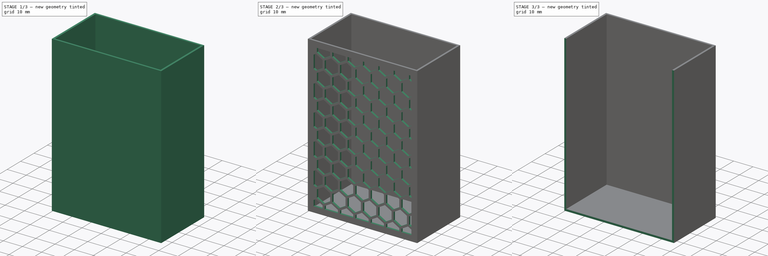
[diagram: build sequence overview — one tinted view per stage of 3, left to right]
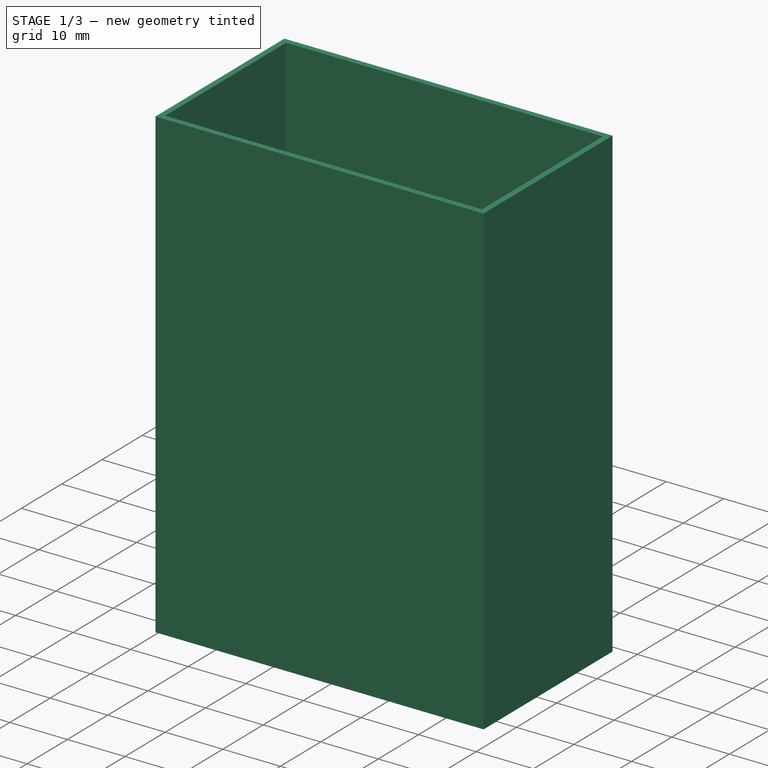
[diagram: stage 1 of 3 — iso view after this stage's code; geometry added in this stage tinted green]
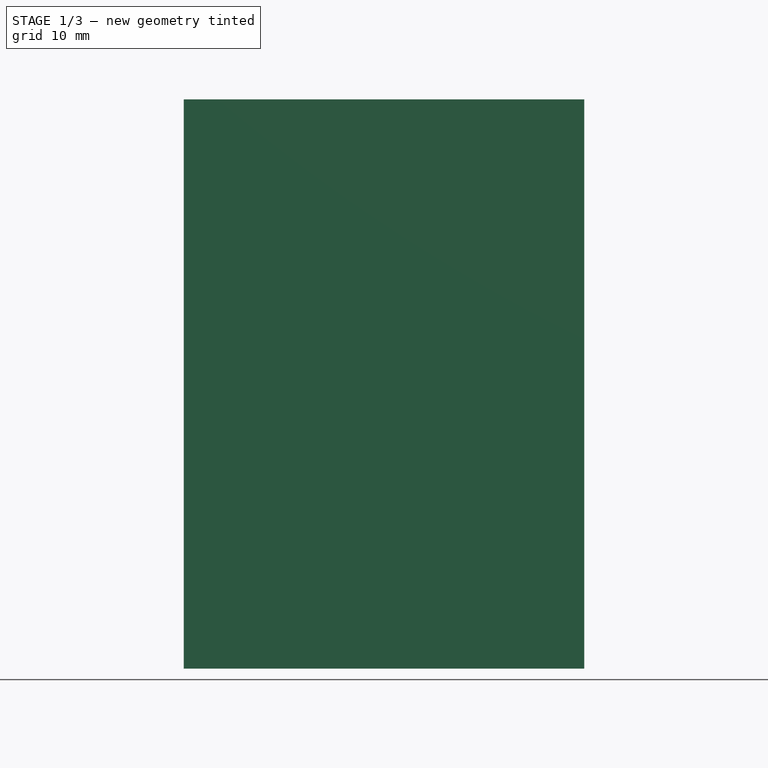
[diagram: stage 1 of 3 — front view after this stage's code; geometry added in this stage tinted green]
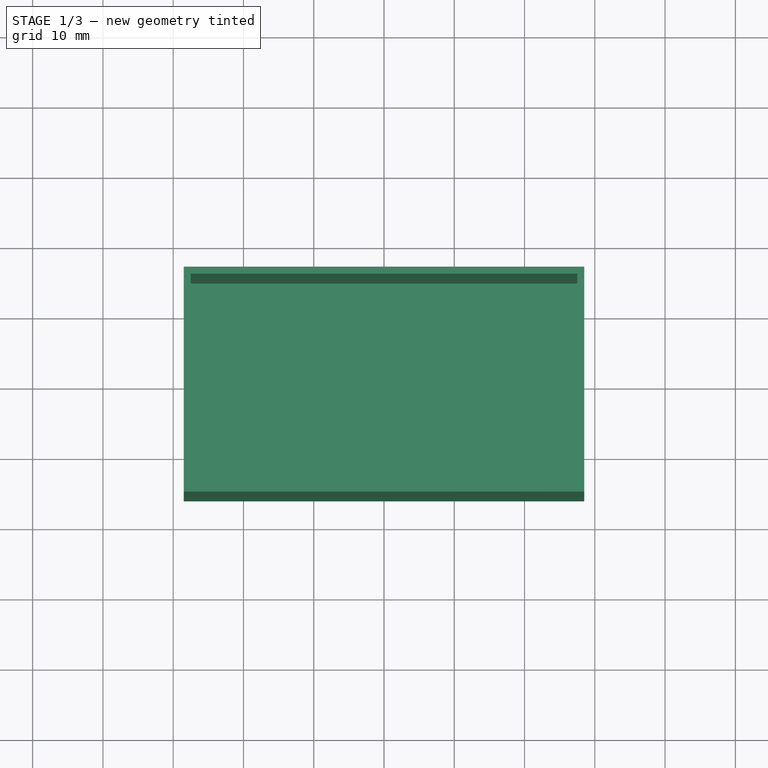
[diagram: stage 1 of 3 — top view after this stage's code; geometry added in this stage tinted green]
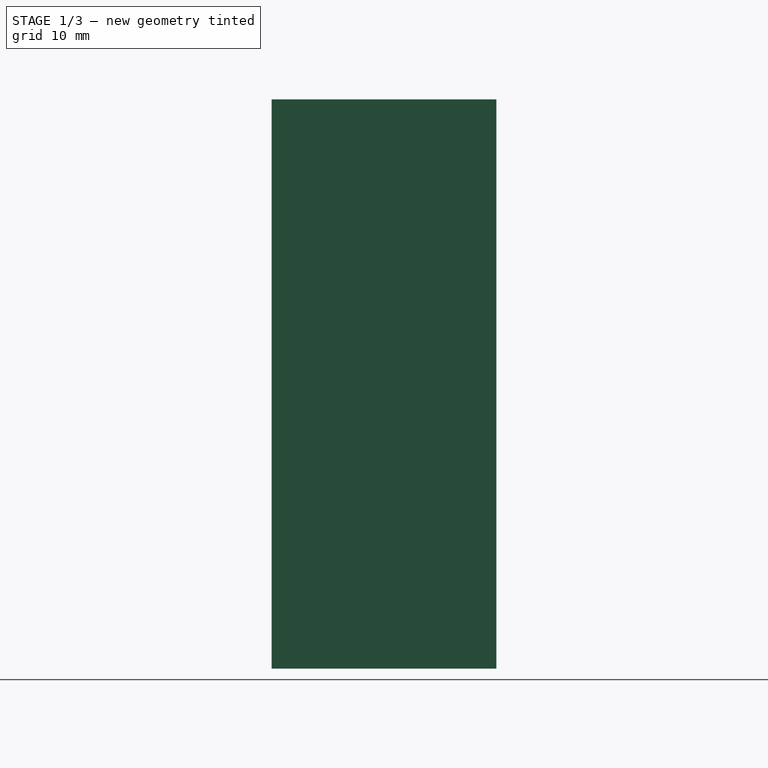
[diagram: stage 1 of 3 — right view after this stage's code; geometry added in this stage tinted green]
FCSTD DOCUMENT  (FreeCAD 1.0R39109 (Git))
Label: SoporteControlAC
License: All rights reserved
LicenseURL: http://en.wikipedia.org/wiki/All_rights_reserved
objects: Sketcher::SketchObject×6, PartDesign::Pocket×2, PartDesign::Pad×1, PartDesign::Thickness×1, Part::FeaturePython×1, PartDesign::Fillet×1, PartDesign::Body×1
note: 28 computed .brp shape members not serialized (recipe doc carries the construction recipe); baked Part::Feature solids carry a one-line shape summary decoded from their .brp

FEATURE [Sketcher::SketchObject] Sketch
  ArcFitTolerance = 1e-06
  AttachmentSupport = -> [XY_Plane]
  FullyConstrained = true
  MakeInternals = false
  MapMode = 5
  sketch-geometry (4):
    g0: LineSegment StartX=-28.5 StartY=16 StartZ=0 EndX=-28.5 EndY=-16 EndZ=0
    g1: LineSegment StartX=-28.5 StartY=-16 StartZ=0 EndX=28.5 EndY=-16 EndZ=0
    g2: LineSegment StartX=28.5 StartY=-16 StartZ=0 EndX=28.5 EndY=16 EndZ=0
    g3: LineSegment StartX=28.5 StartY=16 StartZ=0 EndX=-28.5 EndY=16 EndZ=0
  constraints (11):
    c: Coincident(g0,g1)
    c: Coincident(g1,g2)
    c: Coincident(g2,g3)
    c: Coincident(g3,g0)
    c: Vertical(g0)
    c: Vertical(g2)
    c: Horizontal(g1)
    c: Horizontal(g3)
    c: Distance(g0,g2) = 57
    c: Distance(g1,g3) = 32
    c: Symmetric(g0,g1,g-1)
FEATURE [PartDesign::Pad] Pad
  Direction = (0,0,1)
  Length = 81
  Length2 = 10
  Profile = -> Sketch
  ReferenceAxis = -> Sketch [N_Axis]
  Suppressed = false
  Type = 0
FEATURE [PartDesign::Thickness] Thickness
  Base = -> Pad [Face6]
  BaseFeature = -> Pad
  Intersection = false
  Join = 0
  Mode = 0
  Reversed = true
  SupportTransform = false
  Suppressed = false
  Value = 1
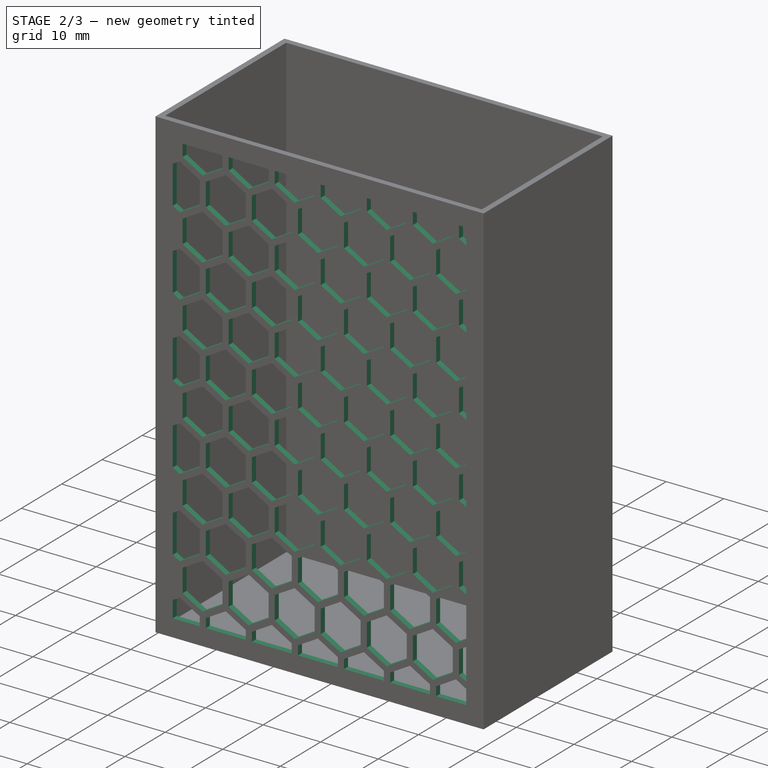
[diagram: stage 2 of 3 — iso view after this stage's code; geometry added in this stage tinted green]
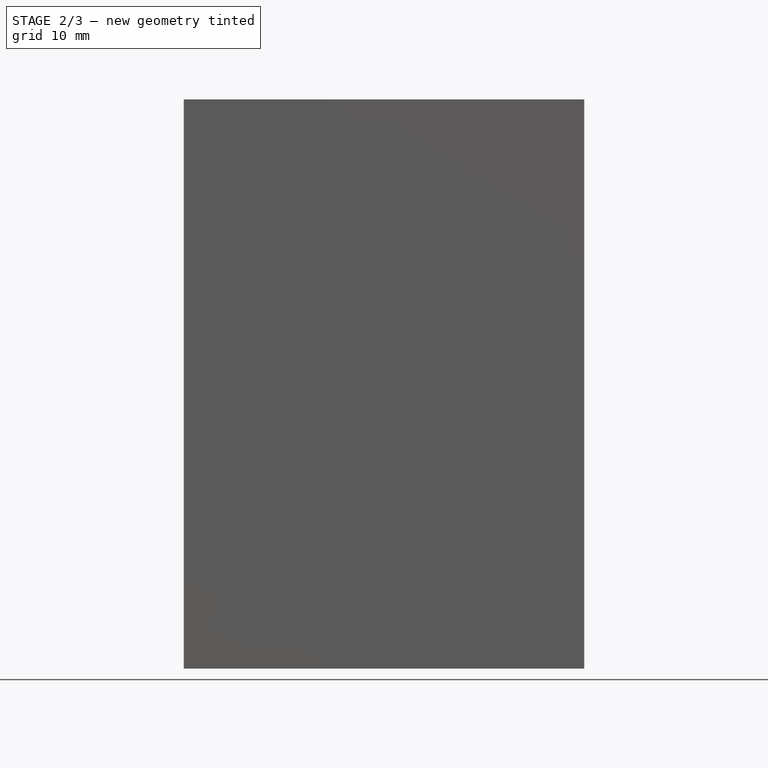
[diagram: stage 2 of 3 — front view after this stage's code; geometry added in this stage tinted green]
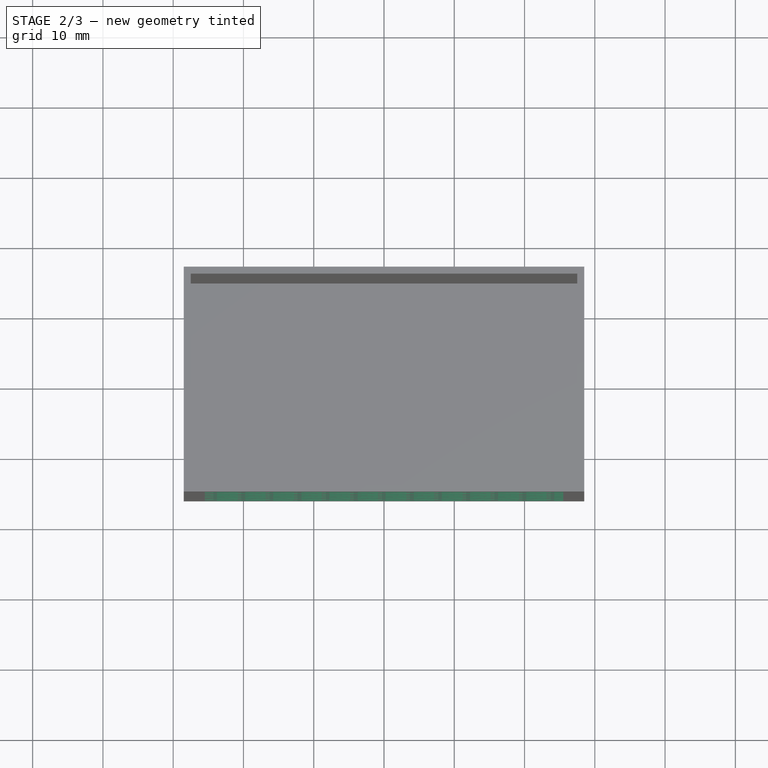
[diagram: stage 2 of 3 — top view after this stage's code; geometry added in this stage tinted green]
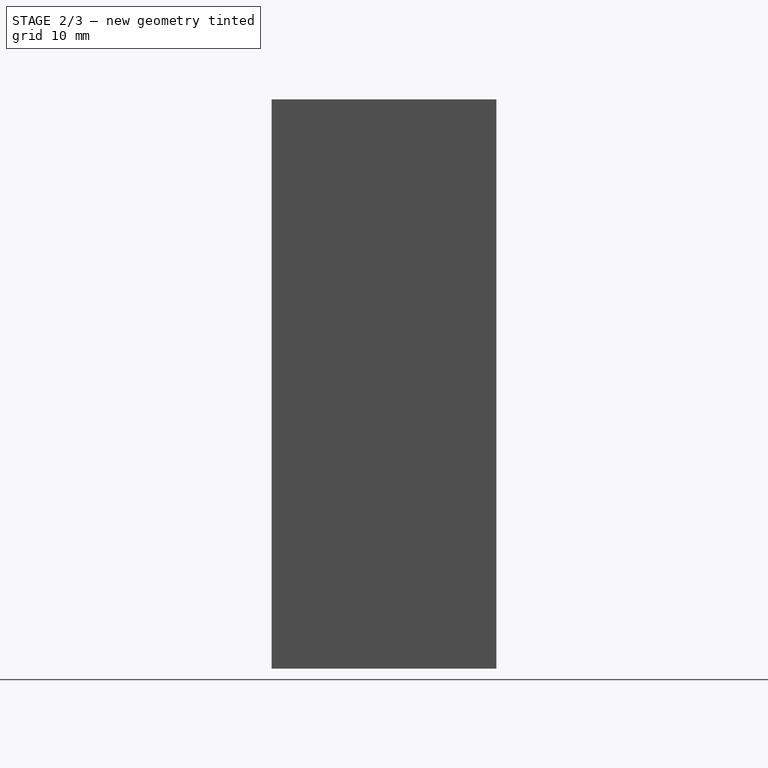
[diagram: stage 2 of 3 — right view after this stage's code; geometry added in this stage tinted green]
FEATURE [Sketcher::SketchObject] Sketch001
  ArcFitTolerance = 1e-06
  FullyConstrained = false
  MakeInternals = false
  MapMode = 5
  Placement = pos=(0,-16,0) rot=(1,0,0;1.5708rad)
  sketch-geometry (17):
    g0: LineSegment StartX=-11.8498 StartY=44.7084 StartZ=0 EndX=-11.8498 EndY=48.7084 EndZ=0
    g1: LineSegment StartX=-11.8498 StartY=48.7084 StartZ=0 EndX=-15.3139 EndY=50.7084 EndZ=0
    g2: LineSegment StartX=-15.3139 StartY=50.7084 StartZ=0 EndX=-18.778 EndY=48.7084 EndZ=0
    g3: LineSegment StartX=-18.778 StartY=48.7084 StartZ=0 EndX=-18.778 EndY=44.7084 EndZ=0
    g4: LineSegment StartX=-18.778 StartY=44.7084 StartZ=0 EndX=-15.3139 EndY=42.7084 EndZ=0
    g5: LineSegment StartX=-15.3139 StartY=42.7084 StartZ=0 EndX=-11.8498 EndY=44.7084 EndZ=0
    g6: Circle [constr] CenterX=-15.3139 CenterY=46.7084 CenterZ=0 NormalX=0 NormalY=0 NormalZ=1 AngleXU=0 Radius=4
    g7: LineSegment StartX=-15.8139 StartY=51.5745 StartZ=0 EndX=-15.8139 EndY=55.5745 EndZ=0
    g8: LineSegment StartX=-15.8139 StartY=55.5745 StartZ=0 EndX=-19.278 EndY=57.5745 EndZ=0
    g9: LineSegment StartX=-19.278 StartY=57.5745 StartZ=0 EndX=-22.7421 EndY=55.5745 EndZ=0
    g10: LineSegment StartX=-22.7421 StartY=55.5745 StartZ=0 EndX=-22.7421 EndY=51.5745 EndZ=0
    g11: LineSegment StartX=-22.7421 StartY=51.5745 StartZ=0 EndX=-19.278 EndY=49.5745 EndZ=0
    g12: LineSegment StartX=-19.278 StartY=49.5745 StartZ=0 EndX=-15.8139 EndY=51.5745 EndZ=0
    g13: Circle [constr] CenterX=-19.278 CenterY=53.5745 CenterZ=0 NormalX=0 NormalY=0 NormalZ=1 AngleXU=0 Radius=4
    g14: LineSegment [constr] StartX=-15.8139 StartY=51.5745 StartZ=0 EndX=-15.3139 EndY=50.7084 EndZ=0
    g15: LineSegment [constr] StartX=-15.3139 StartY=50.7084 StartZ=0 EndX=-16.3139 EndY=50.7084 EndZ=0
    g16: LineSegment [constr] StartX=-16.3139 StartY=50.7084 StartZ=0 EndX=-15.8139 EndY=51.5745 EndZ=0
  constraints (39):
    c: Coincident(g0,g1)
    c: Coincident(g1,g2)
    c: Coincident(g2,g3)
    c: Coincident(g3,g4)
    c: Coincident(g4,g5)
    c: Coincident(g5,g0)
    c: Equal(g0, g1-g5) x5
    c: PointOnObject(g0,g6)
    c: PointOnObject(g1,g6)
    c: PointOnObject(g2,g6)
    c: PointOnObject(g3,g6)
    c: PointOnObject(g4,g6)
    c: PointOnObject(g5,g6)
    c: Radius(g6) = 4
    c: Vertical(g0)
    c: Coincident(g7,g8)
    c: Coincident(g8,g9)
    c: Coincident(g9,g10)
    c: Coincident(g10,g11)
    c: Coincident(g11,g12)
    c: Coincident(g12,g7)
    c: Equal(g7, g8-g12) x5
    c: PointOnObject(g7,g13)
    c: PointOnObject(g8,g13)
    c: PointOnObject(g9,g13)
    c: PointOnObject(g10,g13)
    c: PointOnObject(g11,g13)
    c: PointOnObject(g12,g13)
    c: Radius(g13) = 4
    c: Vertical(g7)
    c: Coincident(g7,g14)
    c: Coincident(g14,g1)
    c: Coincident(g14,g15)
    c: Horizontal(g15)
    c: Coincident(g15,g16)
    c: Coincident(g16,g14)
    c: Equal(g14,g16)
    c: Equal(g16,g15)
    c: Distance(g14) = 1
FEATURE [Part::FeaturePython] Array  # Draft array (typed FeaturePython)
  AlwaysSyncPlacement = false
  Angle = 360
  ArrayType = 0
  Axis = (0,0,1)
  Base = -> Sketch001
  Center = (0,0,0)
  Count = 56
  ExpandArray = false
  Fuse = false
  IntervalAxis = (0,0,0)
  IntervalX = (8,0,0)
  IntervalY = (0,8,0)
  IntervalZ = (0,0,13.7)
  NumberCircles = 3
  NumberPolar = 5
  NumberX = 7
  NumberY = 1
  NumberZ = 8
  Placement = pos=(-5,0,-51) rot=(0,0,1;0rad)
  PlacementList = 56 placements: [(0,-16,0),(0,-16,13.7),(0,-16,27.4),(0,-16,41.1),(0,-16,54.8),(0,-16,68.5),(0,-16,82.2),(0,-16,95.9),(8,-16,0),(8,-16,13.7),(8,-16,27.4),(8,-16,41.1),(8,-16,54.8),(8,-16,68.5),(8,-16,82.2),(8,-16,95.9),(16,-16,0),(16,-16,13.7),(16,-16,27.4),(16,-16,41.1),(16,-16,54.8),(16,-16,68.5),(16,-16,82.2),(16,-16,95.9),(24,-16,0),(24,-16,13.7),(24,-16,27.4),(24,-16,41.1),(24,-16,54.8),(24,-16,68.5),+26 more]
  RadialDistance = 50
  ScaleList = (56) [(1,1,1),(1,1,1),(1,1,1),(1,1,1),(1,1,1),(1,1,1),(1,1,1),(1,1,1),(1,1,1),(1,1,1),(1,1,1),(1,1,1),(1,1,1),(1,1,1),(1,1,1),(1,1,1),(1,1,1),(1,1,1),+38 more]
  Symmetry = 1
  TangentialDistance = 25
FEATURE [Sketcher::SketchObject] Sketch003
  ArcFitTolerance = 1e-06
  FullyConstrained = true
  MakeInternals = false
  MapMode = 5
  Placement = pos=(0,-16,0) rot=(1,0,0;1.5708rad)
FEATURE [Sketcher::SketchObject] Sketch004
  ArcFitTolerance = 1e-06
  AttachmentSupport = -> [Thickness]
  ExternalGeometry = -> [Thickness]
  FullyConstrained = true
  MakeInternals = false
  MapMode = 5
  Placement = pos=(0,-16,0) rot=(1,0,0;1.5708rad)
  sketch-geometry (12):
    g0: LineSegment StartX=-28.5 StartY=81 StartZ=0 EndX=-28.5 EndY=0 EndZ=0
    g1: LineSegment StartX=-28.5 StartY=0 StartZ=0 EndX=28.5 EndY=0 EndZ=0
    g2: LineSegment StartX=28.5 StartY=0 StartZ=0 EndX=28.5 EndY=81 EndZ=0
    g3: LineSegment StartX=28.5 StartY=81 StartZ=0 EndX=-28.5 EndY=81 EndZ=0
    g4: LineSegment StartX=-25.5 StartY=78 StartZ=0 EndX=-25.5 EndY=3 EndZ=0
    g5: LineSegment StartX=-25.5 StartY=3 StartZ=0 EndX=25.5 EndY=3 EndZ=0
    g6: LineSegment StartX=25.5 StartY=3 StartZ=0 EndX=25.5 EndY=78 EndZ=0
    g7: LineSegment StartX=25.5 StartY=78 StartZ=0 EndX=-25.5 EndY=78 EndZ=0
    g8: LineSegment [constr] StartX=-28.5 StartY=81 StartZ=0 EndX=-25.5 EndY=78 EndZ=0
    g9: LineSegment [constr] StartX=-28.5 StartY=0 StartZ=0 EndX=-25.5 EndY=3 EndZ=0
    g10: LineSegment [constr] StartX=28.5 StartY=0 StartZ=0 EndX=25.5 EndY=3 EndZ=0
    g11: LineSegment [constr] StartX=28.5 StartY=81 StartZ=0 EndX=25.5 EndY=78 EndZ=0
  constraints (30):
    c: Coincident(g0,g1)
    c: Coincident(g1,g2)
    c: Coincident(g2,g3)
    c: Coincident(g3,g0)
    c: Vertical(g0)
    c: Vertical(g2)
    c: Horizontal(g1)
    c: Horizontal(g3)
    c: Coincident(g4,g5)
    c: Coincident(g5,g6)
    c: Coincident(g6,g7)
    c: Coincident(g7,g4)
    c: Vertical(g4)
    c: Vertical(g6)
    c: Horizontal(g5)
    c: Horizontal(g7)
    c: Coincident(g8,g0)
    c: Coincident(g8,g4)
    c: Coincident(g9,g1)
    c: Coincident(g9,g5)
    c: Coincident(g10,g2)
    c: Coincident(g10,g6)
    c: Coincident(g11,g3)
    c: Coincident(g11,g7)
    c: Perpendicular(g8,g9)
    c: Perpendicular(g9,g10)
    c: Perpendicular(g10,g11)
    c: Distance(g4,g0) = 3
    c: Coincident(g0,g-3)
    c: Coincident(g1,g-4)
FEATURE [Sketcher::SketchObject] Sketch002
  ArcFitTolerance = 1e-06
  ExternalGeometry = -> [Sketch004]
  FullyConstrained = false
  MakeInternals = false
  Placement = pos=(0,-16,0) rot=(1,0,0;1.5708rad)
  sketch-geometry (479):
    g0: LineSegment StartX=-20.8139 StartY=3 StartZ=0 EndX=-20.8139 EndY=4.57446 EndZ=0
    g1: LineSegment StartX=-20.8139 StartY=4.57446 StartZ=0 EndX=-24.278 EndY=6.57446 EndZ=0
    g2: LineSegment StartX=-24.278 StartY=6.57446 StartZ=0 EndX=-25.5 EndY=5.86894 EndZ=0
    g3: LineSegment StartX=-16.8498 StartY=7.40843 StartZ=0 EndX=-16.8498 EndY=11.4084 EndZ=0
    g4: LineSegment StartX=-16.8498 StartY=11.4084 StartZ=0 EndX=-20.3139 EndY=13.4084 EndZ=0
    g5: LineSegment StartX=-20.3139 StartY=13.4084 StartZ=0 EndX=-23.778 EndY=11.4084 EndZ=0
    g6: LineSegment StartX=-23.778 StartY=11.4084 StartZ=0 EndX=-23.778 EndY=7.40843 EndZ=0
    g7: LineSegment StartX=-23.778 StartY=7.40843 StartZ=0 EndX=-20.3139 EndY=5.40843 EndZ=0
    g8: LineSegment StartX=-20.3139 StartY=5.40843 StartZ=0 EndX=-16.8498 EndY=7.40843 EndZ=0
    g9: LineSegment StartX=-20.8139 StartY=14.2745 StartZ=0 EndX=-20.8139 EndY=18.2745 EndZ=0
    g10: LineSegment StartX=-20.8139 StartY=18.2745 StartZ=0 EndX=-24.278 EndY=20.2745 EndZ=0
    g11: LineSegment StartX=-24.278 StartY=20.2745 StartZ=0 EndX=-25.5 EndY=19.5689 EndZ=0
    g12: LineSegment StartX=-25.5 StartY=12.98 StartZ=0 EndX=-24.278 EndY=12.2745 EndZ=0
    g13: LineSegment StartX=-24.278 StartY=12.2745 StartZ=0 EndX=-20.8139 EndY=14.2745 EndZ=0
    g14: LineSegment StartX=-16.8498 StartY=21.1084 StartZ=0 EndX=-16.8498 EndY=25.1084 EndZ=0
    g15: LineSegment StartX=-16.8498 StartY=25.1084 StartZ=0 EndX=-20.3139 EndY=27.1084 EndZ=0
    g16: LineSegment StartX=-20.3139 StartY=27.1084 StartZ=0 EndX=-23.778 EndY=25.1084 EndZ=0
    g17: LineSegment StartX=-23.778 StartY=25.1084 StartZ=0 EndX=-23.778 EndY=21.1084 EndZ=0
    g18: LineSegment StartX=-23.778 StartY=21.1084 StartZ=0 EndX=-20.3139 EndY=19.1084 EndZ=0
    g19: LineSegment StartX=-20.3139 StartY=19.1084 StartZ=0 EndX=-16.8498 EndY=21.1084 EndZ=0
    g20: LineSegment StartX=-20.8139 StartY=27.9745 StartZ=0 EndX=-20.8139 EndY=31.9745 EndZ=0
    g21: LineSegment StartX=-20.8139 StartY=31.9745 StartZ=0 EndX=-24.278 EndY=33.9745 EndZ=0
    g22: LineSegment StartX=-24.278 StartY=33.9745 StartZ=0 EndX=-25.5 EndY=33.2689 EndZ=0
    g23: LineSegment StartX=-25.5 StartY=26.68 StartZ=0 EndX=-24.278 EndY=25.9745 EndZ=0
    g24: LineSegment StartX=-24.278 StartY=25.9745 StartZ=0 EndX=-20.8139 EndY=27.9745 EndZ=0
    g25: LineSegment StartX=-16.8498 StartY=34.8084 StartZ=0 EndX=-16.8498 EndY=38.8084 EndZ=0
    g26: LineSegment StartX=-16.8498 StartY=38.8084 StartZ=0 EndX=-20.3139 EndY=40.8084 EndZ=0
    g27: LineSegment StartX=-20.3139 StartY=40.8084 StartZ=0 EndX=-23.778 EndY=38.8084 EndZ=0
    g28: LineSegment StartX=-23.778 StartY=38.8084 StartZ=0 EndX=-23.778 EndY=34.8084 EndZ=0
    g29: LineSegment StartX=-23.778 StartY=34.8084 StartZ=0 EndX=-20.3139 EndY=32.8084 EndZ=0
    g30: LineSegment StartX=-20.3139 StartY=32.8084 StartZ=0 EndX=-16.8498 EndY=34.8084 EndZ=0
    g31: LineSegment StartX=-20.8139 StartY=41.6745 StartZ=0 EndX=-20.8139 EndY=45.6745 EndZ=0
    g32: LineSegment StartX=-20.8139 StartY=45.6745 StartZ=0 EndX=-24.278 EndY=47.6745 EndZ=0
    g33: LineSegment StartX=-24.278 StartY=47.6745 StartZ=0 EndX=-25.5 EndY=46.9689 EndZ=0
    g34: LineSegment StartX=-25.5 StartY=40.38 StartZ=0 EndX=-24.278 EndY=39.6745 EndZ=0
    g35: LineSegment StartX=-24.278 StartY=39.6745 StartZ=0 EndX=-20.8139 EndY=41.6745 EndZ=0
    g36: LineSegment StartX=-16.8498 StartY=48.5084 StartZ=0 EndX=-16.8498 EndY=52.5084 EndZ=0
    g37: LineSegment StartX=-16.8498 StartY=52.5084 StartZ=0 EndX=-20.3139 EndY=54.5084 EndZ=0
    g38: LineSegment StartX=-20.3139 StartY=54.5084 StartZ=0 EndX=-23.778 EndY=52.5084 EndZ=0
    g39: LineSegment StartX=-23.778 StartY=52.5084 StartZ=0 EndX=-23.778 EndY=48.5084 EndZ=0
    g40: LineSegment StartX=-23.778 StartY=48.5084 StartZ=0 EndX=-20.3139 EndY=46.5084 EndZ=0
    g41: LineSegment StartX=-20.3139 StartY=46.5084 StartZ=0 EndX=-16.8498 EndY=48.5084 EndZ=0
    g42: LineSegment StartX=-20.8139 StartY=55.3745 StartZ=0 EndX=-20.8139 EndY=59.3745 EndZ=0
    g43: LineSegment StartX=-20.8139 StartY=59.3745 StartZ=0 EndX=-24.278 EndY=61.3745 EndZ=0
    g44: LineSegment StartX=-24.278 StartY=61.3745 StartZ=0 EndX=-25.5 EndY=60.6689 EndZ=0
    g45: LineSegment StartX=-25.5 StartY=54.08 StartZ=0 EndX=-24.278 EndY=53.3745 EndZ=0
    g46: LineSegment StartX=-24.278 StartY=53.3745 StartZ=0 EndX=-20.8139 EndY=55.3745 EndZ=0
    g47: LineSegment StartX=-16.8498 StartY=62.2084 StartZ=0 EndX=-16.8498 EndY=66.2084 EndZ=0
    g48: LineSegment StartX=-16.8498 StartY=66.2084 StartZ=0 EndX=-20.3139 EndY=68.2084 EndZ=0
    g49: LineSegment StartX=-20.3139 StartY=68.2084 StartZ=0 EndX=-23.778 EndY=66.2084 EndZ=0
    g50: LineSegment StartX=-23.778 StartY=66.2084 StartZ=0 EndX=-23.778 EndY=62.2084 EndZ=0
    g51: LineSegment StartX=-23.778 StartY=62.2084 StartZ=0 EndX=-20.3139 EndY=60.2084 EndZ=0
    g52: LineSegment StartX=-20.3139 StartY=60.2084 StartZ=0 EndX=-16.8498 EndY=62.2084 EndZ=0
    g53: LineSegment StartX=-20.8139 StartY=69.0745 StartZ=0 EndX=-20.8139 EndY=73.0745 EndZ=0
    g54: LineSegment StartX=-20.8139 StartY=73.0745 StartZ=0 EndX=-24.278 EndY=75.0745 EndZ=0
    g55: LineSegment StartX=-24.278 StartY=75.0745 StartZ=0 EndX=-25.5 EndY=74.3689 EndZ=0
    g56: LineSegment StartX=-25.5 StartY=67.78 StartZ=0 EndX=-24.278 EndY=67.0745 EndZ=0
    g57: LineSegment StartX=-24.278 StartY=67.0745 StartZ=0 EndX=-20.8139 EndY=69.0745 EndZ=0
    g58: LineSegment StartX=-16.8498 StartY=75.9084 StartZ=0 EndX=-16.8498 EndY=78 EndZ=0
    g59: LineSegment StartX=-23.778 StartY=78 StartZ=0 EndX=-23.778 EndY=75.9084 EndZ=0
    g60: LineSegment StartX=-23.778 StartY=75.9084 StartZ=0 EndX=-20.3139 EndY=73.9084 EndZ=0
    g61: LineSegment StartX=-20.3139 StartY=73.9084 StartZ=0 EndX=-16.8498 EndY=75.9084 EndZ=0
    g62: LineSegment StartX=-12.8139 StartY=3 StartZ=0 EndX=-12.8139 EndY=4.57446 EndZ=0
    g63: LineSegment StartX=-12.8139 StartY=4.57446 StartZ=0 EndX=-16.278 EndY=6.57446 EndZ=0
    g64: LineSegment StartX=-16.278 StartY=6.57446 StartZ=0 EndX=-19.7421 EndY=4.57446 EndZ=0
    g65: LineSegment StartX=-19.7421 StartY=4.57446 StartZ=0 EndX=-19.7421 EndY=3 EndZ=0
    g66: LineSegment StartX=-8.84981 StartY=7.40843 StartZ=0 EndX=-8.84981 EndY=11.4084 EndZ=0
    g67: LineSegment StartX=-8.84981 StartY=11.4084 StartZ=0 EndX=-12.3139 EndY=13.4084 EndZ=0
    g68: LineSegment StartX=-12.3139 StartY=13.4084 StartZ=0 EndX=-15.778 EndY=11.4084 EndZ=0
    g69: LineSegment StartX=-15.778 StartY=11.4084 StartZ=0 EndX=-15.778 EndY=7.40843 EndZ=0
    g70: LineSegment StartX=-15.778 StartY=7.40843 StartZ=0 EndX=-12.3139 EndY=5.40843 EndZ=0
    g71: LineSegment StartX=-12.3139 StartY=5.40843 StartZ=0 EndX=-8.84981 EndY=7.40843 EndZ=0
    g72: LineSegment StartX=-12.8139 StartY=14.2745 StartZ=0 EndX=-12.8139 EndY=18.2745 EndZ=0
    g73: LineSegment StartX=-12.8139 StartY=18.2745 StartZ=0 EndX=-16.278 EndY=20.2745 EndZ=0
    g74: LineSegment StartX=-16.278 StartY=20.2745 StartZ=0 EndX=-19.7421 EndY=18.2745 EndZ=0
    g75: LineSegment StartX=-19.7421 StartY=18.2745 StartZ=0 EndX=-19.7421 EndY=14.2745 EndZ=0
    g76: LineSegment StartX=-19.7421 StartY=14.2745 StartZ=0 EndX=-16.278 EndY=12.2745 EndZ=0
    g77: LineSegment StartX=-16.278 StartY=12.2745 StartZ=0 EndX=-12.8139 EndY=14.2745 EndZ=0
    g78: LineSegment StartX=-8.84981 StartY=21.1084 StartZ=0 EndX=-8.84981 EndY=25.1084 EndZ=0
    g79: LineSegment StartX=-8.84981 StartY=25.1084 StartZ=0 EndX=-12.3139 EndY=27.1084 EndZ=0
    g80: LineSegment StartX=-12.3139 StartY=27.1084 StartZ=0 EndX=-15.778 EndY=25.1084 EndZ=0
    g81: LineSegment StartX=-15.778 StartY=25.1084 StartZ=0 EndX=-15.778 EndY=21.1084 EndZ=0
    g82: LineSegment StartX=-15.778 StartY=21.1084 StartZ=0 EndX=-12.3139 EndY=19.1084 EndZ=0
    g83: LineSegment StartX=-12.3139 StartY=19.1084 StartZ=0 EndX=-8.84981 EndY=21.1084 EndZ=0
    g84: LineSegment StartX=-12.8139 StartY=27.9745 StartZ=0 EndX=-12.8139 EndY=31.9745 EndZ=0
    g85: LineSegment StartX=-12.8139 StartY=31.9745 StartZ=0 EndX=-16.278 EndY=33.9745 EndZ=0
    g86: LineSegment StartX=-16.278 StartY=33.9745 StartZ=0 EndX=-19.7421 EndY=31.9745 EndZ=0
    g87: LineSegment StartX=-19.7421 StartY=31.9745 StartZ=0 EndX=-19.7421 EndY=27.9745 EndZ=0
    g88: LineSegment StartX=-19.7421 StartY=27.9745 StartZ=0 EndX=-16.278 EndY=25.9745 EndZ=0
    g89: LineSegment StartX=-16.278 StartY=25.9745 StartZ=0 EndX=-12.8139 EndY=27.9745 EndZ=0
    g90: LineSegment StartX=-8.84981 StartY=34.8084 StartZ=0 EndX=-8.84981 EndY=38.8084 EndZ=0
    g91: LineSegment StartX=-8.84981 StartY=38.8084 StartZ=0 EndX=-12.3139 EndY=40.8084 EndZ=0
    g92: LineSegment StartX=-12.3139 StartY=40.8084 StartZ=0 EndX=-15.778 EndY=38.8084 EndZ=0
    g93: LineSegment StartX=-15.778 StartY=38.8084 StartZ=0 EndX=-15.778 EndY=34.8084 EndZ=0
    g94: LineSegment StartX=-15.778 StartY=34.8084 StartZ=0 EndX=-12.3139 EndY=32.8084 EndZ=0
    g95: LineSegment StartX=-12.3139 StartY=32.8084 StartZ=0 EndX=-8.84981 EndY=34.8084 EndZ=0
    g96: LineSegment StartX=-12.8139 StartY=41.6745 StartZ=0 EndX=-12.8139 EndY=45.6745 EndZ=0
    g97: LineSegment StartX=-12.8139 StartY=45.6745 StartZ=0 EndX=-16.278 EndY=47.6745 EndZ=0
    g98: LineSegment StartX=-16.278 StartY=47.6745 StartZ=0 EndX=-19.7421 EndY=45.6745 EndZ=0
    g99: LineSegment StartX=-19.7421 StartY=45.6745 StartZ=0 EndX=-19.7421 EndY=41.6745 EndZ=0
    g100: LineSegment StartX=-19.7421 StartY=41.6745 StartZ=0 EndX=-16.278 EndY=39.6745 EndZ=0
    g101: LineSegment StartX=-16.278 StartY=39.6745 StartZ=0 EndX=-12.8139 EndY=41.6745 EndZ=0
    g102: LineSegment StartX=-8.84981 StartY=48.5084 StartZ=0 EndX=-8.84981 EndY=52.5084 EndZ=0
    g103: LineSegment StartX=-8.84981 StartY=52.5084 StartZ=0 EndX=-12.3139 EndY=54.5084 EndZ=0
    g104: LineSegment StartX=-12.3139 StartY=54.5084 StartZ=0 EndX=-15.778 EndY=52.5084 EndZ=0
    g105: LineSegment StartX=-15.778 StartY=52.5084 StartZ=0 EndX=-15.778 EndY=48.5084 EndZ=0
    g106: LineSegment StartX=-15.778 StartY=48.5084 StartZ=0 EndX=-12.3139 EndY=46.5084 EndZ=0
    g107: LineSegment StartX=-12.3139 StartY=46.5084 StartZ=0 EndX=-8.84981 EndY=48.5084 EndZ=0
    g108: LineSegment StartX=-12.8139 StartY=55.3745 StartZ=0 EndX=-12.8139 EndY=59.3745 EndZ=0
    g109: LineSegment StartX=-12.8139 StartY=59.3745 StartZ=0 EndX=-16.278 EndY=61.3745 EndZ=0
    g110: LineSegment StartX=-16.278 StartY=61.3745 StartZ=0 EndX=-19.7421 EndY=59.3745 EndZ=0
    g111: LineSegment StartX=-19.7421 StartY=59.3745 StartZ=0 EndX=-19.7421 EndY=55.3745 EndZ=0
    g112: LineSegment StartX=-19.7421 StartY=55.3745 StartZ=0 EndX=-16.278 EndY=53.3745 EndZ=0
    g113: LineSegment StartX=-16.278 StartY=53.3745 StartZ=0 EndX=-12.8139 EndY=55.3745 EndZ=0
    g114: LineSegment StartX=-8.84981 StartY=62.2084 StartZ=0 EndX=-8.84981 EndY=66.2084 EndZ=0
    g115: LineSegment StartX=-8.84981 StartY=66.2084 StartZ=0 EndX=-12.3139 EndY=68.2084 EndZ=0
    g116: LineSegment StartX=-12.3139 StartY=68.2084 StartZ=0 EndX=-15.778 EndY=66.2084 EndZ=0
    g117: LineSegment StartX=-15.778 StartY=66.2084 StartZ=0 EndX=-15.778 EndY=62.2084 EndZ=0
    g118: LineSegment StartX=-15.778 StartY=62.2084 StartZ=0 EndX=-12.3139 EndY=60.2084 EndZ=0
    g119: LineSegment StartX=-12.3139 StartY=60.2084 StartZ=0 EndX=-8.84981 EndY=62.2084 EndZ=0
    g120: LineSegment StartX=-12.8139 StartY=69.0745 StartZ=0 EndX=-12.8139 EndY=73.0745 EndZ=0
    g121: LineSegment StartX=-12.8139 StartY=73.0745 StartZ=0 EndX=-16.278 EndY=75.0745 EndZ=0
    g122: LineSegment StartX=-16.278 StartY=75.0745 StartZ=0 EndX=-19.7421 EndY=73.0745 EndZ=0
    g123: LineSegment StartX=-19.7421 StartY=73.0745 StartZ=0 EndX=-19.7421 EndY=69.0745 EndZ=0
    g124: LineSegment StartX=-19.7421 StartY=69.0745 StartZ=0 EndX=-16.278 EndY=67.0745 EndZ=0
    g125: LineSegment StartX=-16.278 StartY=67.0745 StartZ=0 EndX=-12.8139 EndY=69.0745 EndZ=0
    g126: LineSegment StartX=-8.84981 StartY=75.9084 StartZ=0 EndX=-8.84981 EndY=78 EndZ=0
    g127: LineSegment StartX=-15.778 StartY=78 StartZ=0 EndX=-15.778 EndY=75.9084 EndZ=0
    g128: LineSegment StartX=-15.778 StartY=75.9084 StartZ=0 EndX=-12.3139 EndY=73.9084 EndZ=0
    g129: LineSegment StartX=-12.3139 StartY=73.9084 StartZ=0 EndX=-8.84981 EndY=75.9084 EndZ=0
    g130: LineSegment StartX=-4.81391 StartY=3 StartZ=0 EndX=-4.81391 EndY=4.57446 EndZ=0
    g131: LineSegment StartX=-4.81391 StartY=4.57446 StartZ=0 EndX=-8.27801 EndY=6.57446 EndZ=0
    g132: LineSegment StartX=-8.27801 StartY=6.57446 StartZ=0 EndX=-11.7421 EndY=4.57446 EndZ=0
    g133: LineSegment StartX=-11.7421 StartY=4.57446 StartZ=0 EndX=-11.7421 EndY=3 EndZ=0
    g134: LineSegment StartX=-0.849808 StartY=7.40843 StartZ=0 EndX=-0.849808 EndY=11.4084 EndZ=0
    g135: LineSegment StartX=-0.849808 StartY=11.4084 StartZ=0 EndX=-4.31391 EndY=13.4084 EndZ=0
    g136: LineSegment StartX=-4.31391 StartY=13.4084 StartZ=0 EndX=-7.77801 EndY=11.4084 EndZ=0
    g137: LineSegment StartX=-7.77801 StartY=11.4084 StartZ=0 EndX=-7.77801 EndY=7.40843 EndZ=0
    g138: LineSegment StartX=-7.77801 StartY=7.40843 StartZ=0 EndX=-4.31391 EndY=5.40843 EndZ=0
    g139: LineSegment StartX=-4.31391 StartY=5.40843 StartZ=0 EndX=-0.849808 EndY=7.40843 EndZ=0
    g140: LineSegment StartX=-4.81391 StartY=14.2745 StartZ=0 EndX=-4.81391 EndY=18.2745 EndZ=0
    g141: LineSegment StartX=-4.81391 StartY=18.2745 StartZ=0 EndX=-8.27801 EndY=20.2745 EndZ=0
    g142: LineSegment StartX=-8.27801 StartY=20.2745 StartZ=0 EndX=-11.7421 EndY=18.2745 EndZ=0
    g143: LineSegment StartX=-11.7421 StartY=18.2745 StartZ=0 EndX=-11.7421 EndY=14.2745 EndZ=0
    g144: LineSegment StartX=-11.7421 StartY=14.2745 StartZ=0 EndX=-8.27801 EndY=12.2745 EndZ=0
    g145: LineSegment StartX=-8.27801 StartY=12.2745 StartZ=0 EndX=-4.81391 EndY=14.2745 EndZ=0
    g146: LineSegment StartX=-0.849808 StartY=21.1084 StartZ=0 EndX=-0.849808 EndY=25.1084 EndZ=0
    g147: LineSegment StartX=-0.849808 StartY=25.1084 StartZ=0 EndX=-4.31391 EndY=27.1084 EndZ=0
    g148: LineSegment StartX=-4.31391 StartY=27.1084 StartZ=0 EndX=-7.77801 EndY=25.1084 EndZ=0
    g149: LineSegment StartX=-7.77801 StartY=25.1084 StartZ=0 EndX=-7.77801 EndY=21.1084 EndZ=0
    g150: LineSegment StartX=-7.77801 StartY=21.1084 StartZ=0 EndX=-4.31391 EndY=19.1084 EndZ=0
    g151: LineSegment StartX=-4.31391 StartY=19.1084 StartZ=0 EndX=-0.849808 EndY=21.1084 EndZ=0
    g152: LineSegment StartX=-4.81391 StartY=27.9745 StartZ=0 EndX=-4.81391 EndY=31.9745 EndZ=0
    g153: LineSegment StartX=-4.81391 StartY=31.9745 StartZ=0 EndX=-8.27801 EndY=33.9745 EndZ=0
    g154: LineSegment StartX=-8.27801 StartY=33.9745 StartZ=0 EndX=-11.7421 EndY=31.9745 EndZ=0
    g155: LineSegment StartX=-11.7421 StartY=31.9745 StartZ=0 EndX=-11.7421 EndY=27.9745 EndZ=0
    g156: LineSegment StartX=-11.7421 StartY=27.9745 StartZ=0 EndX=-8.27801 EndY=25.9745 EndZ=0
    g157: LineSegment StartX=-8.27801 StartY=25.9745 StartZ=0 EndX=-4.81391 EndY=27.9745 EndZ=0
    g158: LineSegment StartX=-0.849808 StartY=34.8084 StartZ=0 EndX=-0.849808 EndY=38.8084 EndZ=0
    g159: LineSegment StartX=-0.849808 StartY=38.8084 StartZ=0 EndX=-4.31391 EndY=40.8084 EndZ=0
    g160: LineSegment StartX=-4.31391 StartY=40.8084 StartZ=0 EndX=-7.77801 EndY=38.8084 EndZ=0
    g161: LineSegment StartX=-7.77801 StartY=38.8084 StartZ=0 EndX=-7.77801 EndY=34.8084 EndZ=0
    g162: LineSegment StartX=-7.77801 StartY=34.8084 StartZ=0 EndX=-4.31391 EndY=32.8084 EndZ=0
    g163: LineSegment StartX=-4.31391 StartY=32.8084 StartZ=0 EndX=-0.849808 EndY=34.8084 EndZ=0
    g164: LineSegment StartX=-4.81391 StartY=41.6745 StartZ=0 EndX=-4.81391 EndY=45.6745 EndZ=0
    g165: LineSegment StartX=-4.81391 StartY=45.6745 StartZ=0 EndX=-8.27801 EndY=47.6745 EndZ=0
    g166: LineSegment StartX=-8.27801 StartY=47.6745 StartZ=0 EndX=-11.7421 EndY=45.6745 EndZ=0
    g167: LineSegment StartX=-11.7421 StartY=45.6745 StartZ=0 EndX=-11.7421 EndY=41.6745 EndZ=0
    g168: LineSegment StartX=-11.7421 StartY=41.6745 StartZ=0 EndX=-8.27801 EndY=39.6745 EndZ=0
    g169: LineSegment StartX=-8.27801 StartY=39.6745 StartZ=0 EndX=-4.81391 EndY=41.6745 EndZ=0
    g170: LineSegment StartX=-0.849808 StartY=48.5084 StartZ=0 EndX=-0.849808 EndY=52.5084 EndZ=0
    g171: LineSegment StartX=-0.849808 StartY=52.5084 StartZ=0 EndX=-4.31391 EndY=54.5084 EndZ=0
    g172: LineSegment StartX=-4.31391 StartY=54.5084 StartZ=0 EndX=-7.77801 EndY=52.5084 EndZ=0
    g173: LineSegment StartX=-7.77801 StartY=52.5084 StartZ=0 EndX=-7.77801 EndY=48.5084 EndZ=0
    g174: LineSegment StartX=-7.77801 StartY=48.5084 StartZ=0 EndX=-4.31391 EndY=46.5084 EndZ=0
    g175: LineSegment StartX=-4.31391 StartY=46.5084 StartZ=0 EndX=-0.849808 EndY=48.5084 EndZ=0
    g176: LineSegment StartX=-4.81391 StartY=55.3745 StartZ=0 EndX=-4.81391 EndY=59.3745 EndZ=0
    g177: LineSegment StartX=-4.81391 StartY=59.3745 StartZ=0 EndX=-8.27801 EndY=61.3745 EndZ=0
    g178: LineSegment StartX=-8.27801 StartY=61.3745 StartZ=0 EndX=-11.7421 EndY=59.3745 EndZ=0
    g179: LineSegment StartX=-11.7421 StartY=59.3745 StartZ=0 EndX=-11.7421 EndY=55.3745 EndZ=0
    g180: LineSegment StartX=-11.7421 StartY=55.3745 StartZ=0 EndX=-8.27801 EndY=53.3745 EndZ=0
    g181: LineSegment StartX=-8.27801 StartY=53.3745 StartZ=0 EndX=-4.81391 EndY=55.3745 EndZ=0
    g182: LineSegment StartX=-0.849808 StartY=62.2084 StartZ=0 EndX=-0.849808 EndY=66.2084 EndZ=0
    g183: LineSegment StartX=-0.849808 StartY=66.2084 StartZ=0 EndX=-4.31391 EndY=68.2084 EndZ=0
    g184: LineSegment StartX=-4.31391 StartY=68.2084 StartZ=0 EndX=-7.77801 EndY=66.2084 EndZ=0
    g185: LineSegment StartX=-7.77801 StartY=66.2084 StartZ=0 EndX=-7.77801 EndY=62.2084 EndZ=0
    g186: LineSegment StartX=-7.77801 StartY=62.2084 StartZ=0 EndX=-4.31391 EndY=60.2084 EndZ=0
    g187: LineSegment StartX=-4.31391 StartY=60.2084 StartZ=0 EndX=-0.849808 EndY=62.2084 EndZ=0
    g188: LineSegment StartX=-4.81391 StartY=69.0745 StartZ=0 EndX=-4.81391 EndY=73.0745 EndZ=0
    g189: LineSegment StartX=-4.81391 StartY=73.0745 StartZ=0 EndX=-8.27801 EndY=75.0745 EndZ=0
    g190: LineSegment StartX=-8.27801 StartY=75.0745 StartZ=0 EndX=-11.7421 EndY=73.0745 EndZ=0
    g191: LineSegment StartX=-11.7421 StartY=73.0745 StartZ=0 EndX=-11.7421 EndY=69.0745 EndZ=0
    g192: LineSegment StartX=-11.7421 StartY=69.0745 StartZ=0 EndX=-8.27801 EndY=67.0745 EndZ=0
    g193: LineSegment StartX=-8.27801 StartY=67.0745 StartZ=0 EndX=-4.81391 EndY=69.0745 EndZ=0
    g194: LineSegment StartX=-0.849808 StartY=75.9084 StartZ=0 EndX=-0.849808 EndY=78 EndZ=0
    g195: LineSegment StartX=-7.77801 StartY=78 StartZ=0 EndX=-7.77801 EndY=75.9084 EndZ=0
    g196: LineSegment StartX=-7.77801 StartY=75.9084 StartZ=0 EndX=-4.31391 EndY=73.9084 EndZ=0
    g197: LineSegment StartX=-4.31391 StartY=73.9084 StartZ=0 EndX=-0.849808 EndY=75.9084 EndZ=0
    g198: LineSegment StartX=3.18609 StartY=3 StartZ=0 EndX=3.18609 EndY=4.57446 EndZ=0
    g199: LineSegment StartX=3.18609 StartY=4.57446 StartZ=0 EndX=-0.278011 EndY=6.57446 EndZ=0
    g200: LineSegment StartX=-0.278011 StartY=6.57446 StartZ=0 EndX=-3.74211 EndY=4.57446 EndZ=0
    g201: LineSegment StartX=-3.74211 StartY=4.57446 StartZ=0 EndX=-3.74211 EndY=3 EndZ=0
    g202: LineSegment StartX=7.15019 StartY=7.40843 StartZ=0 EndX=7.15019 EndY=11.4084 EndZ=0
    g203: LineSegment StartX=7.15019 StartY=11.4084 StartZ=0 EndX=3.68609 EndY=13.4084 EndZ=0
    g204: LineSegment StartX=3.68609 StartY=13.4084 StartZ=0 EndX=0.221989 EndY=11.4084 EndZ=0
    g205: LineSegment StartX=0.221989 StartY=11.4084 StartZ=0 EndX=0.221989 EndY=7.40843 EndZ=0
    g206: LineSegment StartX=0.221989 StartY=7.40843 StartZ=0 EndX=3.68609 EndY=5.40843 EndZ=0
    g207: LineSegment StartX=3.68609 StartY=5.40843 StartZ=0 EndX=7.15019 EndY=7.40843 EndZ=0
    g208: LineSegment StartX=3.18609 StartY=14.2745 StartZ=0 EndX=3.18609 EndY=18.2745 EndZ=0
    g209: LineSegment StartX=3.18609 StartY=18.2745 StartZ=0 EndX=-0.278011 EndY=20.2745 EndZ=0
    g210: LineSegment StartX=-0.278011 StartY=20.2745 StartZ=0 EndX=-3.74211 EndY=18.2745 EndZ=0
    g211: LineSegment StartX=-3.74211 StartY=18.2745 StartZ=0 EndX=-3.74211 EndY=14.2745 EndZ=0
    g212: LineSegment StartX=-3.74211 StartY=14.2745 StartZ=0 EndX=-0.278011 EndY=12.2745 EndZ=0
    g213: LineSegment StartX=-0.278011 StartY=12.2745 StartZ=0 EndX=3.18609 EndY=14.2745 EndZ=0
    g214: LineSegment StartX=7.15019 StartY=21.1084 StartZ=0 EndX=7.15019 EndY=25.1084 EndZ=0
    g215: LineSegment StartX=7.15019 StartY=25.1084 StartZ=0 EndX=3.68609 EndY=27.1084 EndZ=0
    g216: LineSegment StartX=3.68609 StartY=27.1084 StartZ=0 EndX=0.221989 EndY=25.1084 EndZ=0
    g217: LineSegment StartX=0.221989 StartY=25.1084 StartZ=0 EndX=0.221989 EndY=21.1084 EndZ=0
    g218: LineSegment StartX=0.221989 StartY=21.1084 StartZ=0 EndX=3.68609 EndY=19.1084 EndZ=0
    g219: LineSegment StartX=3.68609 StartY=19.1084 StartZ=0 EndX=7.15019 EndY=21.1084 EndZ=0
    g220: LineSegment StartX=3.18609 StartY=27.9745 StartZ=0 EndX=3.18609 EndY=31.9745 EndZ=0
    g221: LineSegment StartX=3.18609 StartY=31.9745 StartZ=0 EndX=-0.278011 EndY=33.9745 EndZ=0
    g222: LineSegment StartX=-0.278011 StartY=33.9745 StartZ=0 EndX=-3.74211 EndY=31.9745 EndZ=0
    g223: LineSegment StartX=-3.74211 StartY=31.9745 StartZ=0 EndX=-3.74211 EndY=27.9745 EndZ=0
    g224: LineSegment StartX=-3.74211 StartY=27.9745 StartZ=0 EndX=-0.278011 EndY=25.9745 EndZ=0
    g225: LineSegment StartX=-0.278011 StartY=25.9745 StartZ=0 EndX=3.18609 EndY=27.9745 EndZ=0
    g226: LineSegment StartX=7.15019 StartY=34.8084 StartZ=0 EndX=7.15019 EndY=38.8084 EndZ=0
    g227: LineSegment StartX=7.15019 StartY=38.8084 StartZ=0 EndX=3.68609 EndY=40.8084 EndZ=0
    g228: LineSegment StartX=3.68609 StartY=40.8084 StartZ=0 EndX=0.221989 EndY=38.8084 EndZ=0
    g229: LineSegment StartX=0.221989 StartY=38.8084 StartZ=0 EndX=0.221989 EndY=34.8084 EndZ=0
    g230: LineSegment StartX=0.221989 StartY=34.8084 StartZ=0 EndX=3.68609 EndY=32.8084 EndZ=0
    g231: LineSegment StartX=3.68609 StartY=32.8084 StartZ=0 EndX=7.15019 EndY=34.8084 EndZ=0
    g232: LineSegment StartX=3.18609 StartY=41.6745 StartZ=0 EndX=3.18609 EndY=45.6745 EndZ=0
    g233: LineSegment StartX=3.18609 StartY=45.6745 StartZ=0 EndX=-0.278011 EndY=47.6745 EndZ=0
    g234: LineSegment StartX=-0.278011 StartY=47.6745 StartZ=0 EndX=-3.74211 EndY=45.6745 EndZ=0
    g235: LineSegment StartX=-3.74211 StartY=45.6745 StartZ=0 EndX=-3.74211 EndY=41.6745 EndZ=0
    g236: LineSegment StartX=-3.74211 StartY=41.6745 StartZ=0 EndX=-0.278011 EndY=39.6745 EndZ=0
    g237: LineSegment StartX=-0.278011 StartY=39.6745 StartZ=0 EndX=3.18609 EndY=41.6745 EndZ=0
    g238: LineSegment StartX=7.15019 StartY=48.5084 StartZ=0 EndX=7.15019 EndY=52.5084 EndZ=0
    g239: LineSegment StartX=7.15019 StartY=52.5084 StartZ=0 EndX=3.68609 EndY=54.5084 EndZ=0
    g240: LineSegment StartX=3.68609 StartY=54.5084 StartZ=0 EndX=0.221989 EndY=52.5084 EndZ=0
    g241: LineSegment StartX=0.221989 StartY=52.5084 StartZ=0 EndX=0.221989 EndY=48.5084 EndZ=0
    g242: LineSegment StartX=0.221989 StartY=48.5084 StartZ=0 EndX=3.68609 EndY=46.5084 EndZ=0
    g243: LineSegment StartX=3.68609 StartY=46.5084 StartZ=0 EndX=7.15019 EndY=48.5084 EndZ=0
    g244: LineSegment StartX=3.18609 StartY=55.3745 StartZ=0 EndX=3.18609 EndY=59.3745 EndZ=0
    g245: LineSegment StartX=3.18609 StartY=59.3745 StartZ=0 EndX=-0.278011 EndY=61.3745 EndZ=0
    g246: LineSegment StartX=-0.278011 StartY=61.3745 StartZ=0 EndX=-3.74211 EndY=59.3745 EndZ=0
    g247: LineSegment StartX=-3.74211 StartY=59.3745 StartZ=0 EndX=-3.74211 EndY=55.3745 EndZ=0
    g248: LineSegment StartX=-3.74211 StartY=55.3745 StartZ=0 EndX=-0.278011 EndY=53.3745 EndZ=0
    g249: LineSegment StartX=-0.278011 StartY=53.3745 StartZ=0 EndX=3.18609 EndY=55.3745 EndZ=0
    g250: LineSegment StartX=7.15019 StartY=62.2084 StartZ=0 EndX=7.15019 EndY=66.2084 EndZ=0
    g251: LineSegment StartX=7.15019 StartY=66.2084 StartZ=0 EndX=3.68609 EndY=68.2084 EndZ=0
    g252: LineSegment StartX=3.68609 StartY=68.2084 StartZ=0 EndX=0.221989 EndY=66.2084 EndZ=0
    g253: LineSegment StartX=0.221989 StartY=66.2084 StartZ=0 EndX=0.221989 EndY=62.2084 EndZ=0
    g254: LineSegment StartX=0.221989 StartY=62.2084 StartZ=0 EndX=3.68609 EndY=60.2084 EndZ=0
    g255: LineSegment StartX=3.68609 StartY=60.2084 StartZ=0 EndX=7.15019 EndY=62.2084 EndZ=0
    g256: LineSegment StartX=3.18609 StartY=69.0745 StartZ=0 EndX=3.18609 EndY=73.0745 EndZ=0
    g257: LineSegment StartX=3.18609 StartY=73.0745 StartZ=0 EndX=-0.278011 EndY=75.0745 EndZ=0
    g258: LineSegment StartX=-0.278011 StartY=75.0745 StartZ=0 EndX=-3.74211 EndY=73.0745 EndZ=0
    g259: LineSegment StartX=-3.74211 StartY=73.0745 StartZ=0 EndX=-3.74211 EndY=69.0745 EndZ=0
    g260: LineSegment StartX=-3.74211 StartY=69.0745 StartZ=0 EndX=-0.278011 EndY=67.0745 EndZ=0
    g261: LineSegment StartX=-0.278011 StartY=67.0745 StartZ=0 EndX=3.18609 EndY=69.0745 EndZ=0
    g262: LineSegment StartX=7.15019 StartY=75.9084 StartZ=0 EndX=7.15019 EndY=78 EndZ=0
    g263: LineSegment StartX=0.221989 StartY=78 StartZ=0 EndX=0.221989 EndY=75.9084 EndZ=0
    g264: LineSegment StartX=0.221989 StartY=75.9084 StartZ=0 EndX=3.68609 EndY=73.9084 EndZ=0
    g265: LineSegment StartX=3.68609 StartY=73.9084 StartZ=0 EndX=7.15019 EndY=75.9084 EndZ=0
    g266: LineSegment StartX=11.1861 StartY=3 StartZ=0 EndX=11.1861 EndY=4.57446 EndZ=0
    g267: LineSegment StartX=11.1861 StartY=4.57446 StartZ=0 EndX=7.72199 EndY=6.57446 EndZ=0
    g268: LineSegment StartX=7.72199 StartY=6.57446 StartZ=0 EndX=4.25789 EndY=4.57446 EndZ=0
    g269: LineSegment StartX=4.25789 StartY=4.57446 StartZ=0 EndX=4.25789 EndY=3 EndZ=0
    g270: LineSegment StartX=15.1502 StartY=7.40843 StartZ=0 EndX=15.1502 EndY=11.4084 EndZ=0
    g271: LineSegment StartX=15.1502 StartY=11.4084 StartZ=0 EndX=11.6861 EndY=13.4084 EndZ=0
    g272: LineSegment StartX=11.6861 StartY=13.4084 StartZ=0 EndX=8.22199 EndY=11.4084 EndZ=0
    g273: LineSegment StartX=8.22199 StartY=11.4084 StartZ=0 EndX=8.22199 EndY=7.40843 EndZ=0
    g274: LineSegment StartX=8.22199 StartY=7.40843 StartZ=0 EndX=11.6861 EndY=5.40843 EndZ=0
    g275: LineSegment StartX=11.6861 StartY=5.40843 StartZ=0 EndX=15.1502 EndY=7.40843 EndZ=0
    g276: LineSegment StartX=11.1861 StartY=14.2745 StartZ=0 EndX=11.1861 EndY=18.2745 EndZ=0
    g277: LineSegment StartX=11.1861 StartY=18.2745 StartZ=0 EndX=7.72199 EndY=20.2745 EndZ=0
    g278: LineSegment StartX=7.72199 StartY=20.2745 StartZ=0 EndX=4.25789 EndY=18.2745 EndZ=0
    g279: LineSegment StartX=4.25789 StartY=18.2745 StartZ=0 EndX=4.25789 EndY=14.2745 EndZ=0
    g280: LineSegment StartX=4.25789 StartY=14.2745 StartZ=0 EndX=7.72199 EndY=12.2745 EndZ=0
    g281: LineSegment StartX=7.72199 StartY=12.2745 StartZ=0 EndX=11.1861 EndY=14.2745 EndZ=0
    g282: LineSegment StartX=15.1502 StartY=21.1084 StartZ=0 EndX=15.1502 EndY=25.1084 EndZ=0
    g283: LineSegment StartX=15.1502 StartY=25.1084 StartZ=0 EndX=11.6861 EndY=27.1084 EndZ=0
    g284: LineSegment StartX=11.6861 StartY=27.1084 StartZ=0 EndX=8.22199 EndY=25.1084 EndZ=0
    g285: LineSegment StartX=8.22199 StartY=25.1084 StartZ=0 EndX=8.22199 EndY=21.1084 EndZ=0
    g286: LineSegment StartX=8.22199 StartY=21.1084 StartZ=0 EndX=11.6861 EndY=19.1084 EndZ=0
    g287: LineSegment StartX=11.6861 StartY=19.1084 StartZ=0 EndX=15.1502 EndY=21.1084 EndZ=0
    g288: LineSegment StartX=11.1861 StartY=27.9745 StartZ=0 EndX=11.1861 EndY=31.9745 EndZ=0
    g289: LineSegment StartX=11.1861 StartY=31.9745 StartZ=0 EndX=7.72199 EndY=33.9745 EndZ=0
    g290: LineSegment StartX=7.72199 StartY=33.9745 StartZ=0 EndX=4.25789 EndY=31.9745 EndZ=0
    g291: LineSegment StartX=4.25789 StartY=31.9745 StartZ=0 EndX=4.25789 EndY=27.9745 EndZ=0
    g292: LineSegment StartX=4.25789 StartY=27.9745 StartZ=0 EndX=7.72199 EndY=25.9745 EndZ=0
    g293: LineSegment StartX=7.72199 StartY=25.9745 StartZ=0 EndX=11.1861 EndY=27.9745 EndZ=0
    g294: LineSegment StartX=15.1502 StartY=34.8084 StartZ=0 EndX=15.1502 EndY=38.8084 EndZ=0
    g295: LineSegment StartX=15.1502 StartY=38.8084 StartZ=0 EndX=11.6861 EndY=40.8084 EndZ=0
    g296: LineSegment StartX=11.6861 StartY=40.8084 StartZ=0 EndX=8.22199 EndY=38.8084 EndZ=0
    g297: LineSegment StartX=8.22199 StartY=38.8084 StartZ=0 EndX=8.22199 EndY=34.8084 EndZ=0
    g298: LineSegment StartX=8.22199 StartY=34.8084 StartZ=0 EndX=11.6861 EndY=32.8084 EndZ=0
    g299: LineSegment StartX=11.6861 StartY=32.8084 StartZ=0 EndX=15.1502 EndY=34.8084 EndZ=0
    g300: LineSegment StartX=11.1861 StartY=41.6745 StartZ=0 EndX=11.1861 EndY=45.6745 EndZ=0
    g301: LineSegment StartX=11.1861 StartY=45.6745 StartZ=0 EndX=7.72199 EndY=47.6745 EndZ=0
    g302: LineSegment StartX=7.72199 StartY=47.6745 StartZ=0 EndX=4.25789 EndY=45.6745 EndZ=0
    g303: LineSegment StartX=4.25789 StartY=45.6745 StartZ=0 EndX=4.25789 EndY=41.6745 EndZ=0
    g304: LineSegment StartX=4.25789 StartY=41.6745 StartZ=0 EndX=7.72199 EndY=39.6745 EndZ=0
    g305: LineSegment StartX=7.72199 StartY=39.6745 StartZ=0 EndX=11.1861 EndY=41.6745 EndZ=0
    g306: LineSegment StartX=15.1502 StartY=48.5084 StartZ=0 EndX=15.1502 EndY=52.5084 EndZ=0
    g307: LineSegment StartX=15.1502 StartY=52.5084 StartZ=0 EndX=11.6861 EndY=54.5084 EndZ=0
    g308: LineSegment StartX=11.6861 StartY=54.5084 StartZ=0 EndX=8.22199 EndY=52.5084 EndZ=0
    g309: LineSegment StartX=8.22199 StartY=52.5084 StartZ=0 EndX=8.22199 EndY=48.5084 EndZ=0
    g310: LineSegment StartX=8.22199 StartY=48.5084 StartZ=0 EndX=11.6861 EndY=46.5084 EndZ=0
    g311: LineSegment StartX=11.6861 StartY=46.5084 StartZ=0 EndX=15.1502 EndY=48.5084 EndZ=0
    g312: LineSegment StartX=11.1861 StartY=55.3745 StartZ=0 EndX=11.1861 EndY=59.3745 EndZ=0
    g313: LineSegment StartX=11.1861 StartY=59.3745 StartZ=0 EndX=7.72199 EndY=61.3745 EndZ=0
    g314: LineSegment StartX=7.72199 StartY=61.3745 StartZ=0 EndX=4.25789 EndY=59.3745 EndZ=0
    g315: LineSegment StartX=4.25789 StartY=59.3745 StartZ=0 EndX=4.25789 EndY=55.3745 EndZ=0
    g316: LineSegment StartX=4.25789 StartY=55.3745 StartZ=0 EndX=7.72199 EndY=53.3745 EndZ=0
    g317: LineSegment StartX=7.72199 StartY=53.3745 StartZ=0 EndX=11.1861 EndY=55.3745 EndZ=0
    g318: LineSegment StartX=15.1502 StartY=62.2084 StartZ=0 EndX=15.1502 EndY=66.2084 EndZ=0
    g319: LineSegment StartX=15.1502 StartY=66.2084 StartZ=0 EndX=11.6861 EndY=68.2084 EndZ=0
    g320: LineSegment StartX=11.6861 StartY=68.2084 StartZ=0 EndX=8.22199 EndY=66.2084 EndZ=0
    g321: LineSegment StartX=8.22199 StartY=66.2084 StartZ=0 EndX=8.22199 EndY=62.2084 EndZ=0
    g322: LineSegment StartX=8.22199 StartY=62.2084 StartZ=0 EndX=11.6861 EndY=60.2084 EndZ=0
    g323: LineSegment StartX=11.6861 StartY=60.2084 StartZ=0 EndX=15.1502 EndY=62.2084 EndZ=0
    g324: LineSegment StartX=11.1861 StartY=69.0745 StartZ=0 EndX=11.1861 EndY=73.0745 EndZ=0
    g325: LineSegment StartX=11.1861 StartY=73.0745 StartZ=0 EndX=7.72199 EndY=75.0745 EndZ=0
    g326: LineSegment StartX=7.72199 StartY=75.0745 StartZ=0 EndX=4.25789 EndY=73.0745 EndZ=0
    g327: LineSegment StartX=4.25789 StartY=73.0745 StartZ=0 EndX=4.25789 EndY=69.0745 EndZ=0
    g328: LineSegment StartX=4.25789 StartY=69.0745 StartZ=0 EndX=7.72199 EndY=67.0745 EndZ=0
    g329: LineSegment StartX=7.72199 StartY=67.0745 StartZ=0 EndX=11.1861 EndY=69.0745 EndZ=0
    g330: LineSegment StartX=15.1502 StartY=75.9084 StartZ=0 EndX=15.1502 EndY=78 EndZ=0
    g331: LineSegment StartX=8.22199 StartY=78 StartZ=0 EndX=8.22199 EndY=75.9084 EndZ=0
    g332: LineSegment StartX=8.22199 StartY=75.9084 StartZ=0 EndX=11.6861 EndY=73.9084 EndZ=0
    g333: LineSegment StartX=11.6861 StartY=73.9084 StartZ=0 EndX=15.1502 EndY=75.9084 EndZ=0
    g334: LineSegment StartX=19.1861 StartY=3 StartZ=0 EndX=19.1861 EndY=4.57446 EndZ=0
    g335: LineSegment StartX=19.1861 StartY=4.57446 StartZ=0 EndX=15.722 EndY=6.57446 EndZ=0
    g336: LineSegment StartX=15.722 StartY=6.57446 StartZ=0 EndX=12.2579 EndY=4.57446 EndZ=0
    g337: LineSegment StartX=12.2579 StartY=4.57446 StartZ=0 EndX=12.2579 EndY=3 EndZ=0
    g338: LineSegment StartX=23.1502 StartY=7.40843 StartZ=0 EndX=23.1502 EndY=11.4084 EndZ=0
    g339: LineSegment StartX=23.1502 StartY=11.4084 StartZ=0 EndX=19.6861 EndY=13.4084 EndZ=0
    g340: LineSegment StartX=19.6861 StartY=13.4084 StartZ=0 EndX=16.222 EndY=11.4084 EndZ=0
    g341: LineSegment StartX=16.222 StartY=11.4084 StartZ=0 EndX=16.222 EndY=7.40843 EndZ=0
    g342: LineSegment StartX=16.222 StartY=7.40843 StartZ=0 EndX=19.6861 EndY=5.40843 EndZ=0
    g343: LineSegment StartX=19.6861 StartY=5.40843 StartZ=0 EndX=23.1502 EndY=7.40843 EndZ=0
    g344: LineSegment StartX=19.1861 StartY=14.2745 StartZ=0 EndX=19.1861 EndY=18.2745 EndZ=0
    g345: LineSegment StartX=19.1861 StartY=18.2745 StartZ=0 EndX=15.722 EndY=20.2745 EndZ=0
    g346: LineSegment StartX=15.722 StartY=20.2745 StartZ=0 EndX=12.2579 EndY=18.2745 EndZ=0
    g347: LineSegment StartX=12.2579 StartY=18.2745 StartZ=0 EndX=12.2579 EndY=14.2745 EndZ=0
    g348: LineSegment StartX=12.2579 StartY=14.2745 StartZ=0 EndX=15.722 EndY=12.2745 EndZ=0
    g349: LineSegment StartX=15.722 StartY=12.2745 StartZ=0 EndX=19.1861 EndY=14.2745 EndZ=0
    g350: LineSegment StartX=23.1502 StartY=21.1084 StartZ=0 EndX=23.1502 EndY=25.1084 EndZ=0
    g351: LineSegment StartX=23.1502 StartY=25.1084 StartZ=0 EndX=19.6861 EndY=27.1084 EndZ=0
    g352: LineSegment StartX=19.6861 StartY=27.1084 StartZ=0 EndX=16.222 EndY=25.1084 EndZ=0
    g353: LineSegment StartX=16.222 StartY=25.1084 StartZ=0 EndX=16.222 EndY=21.1084 EndZ=0
    g354: LineSegment StartX=16.222 StartY=21.1084 StartZ=0 EndX=19.6861 EndY=19.1084 EndZ=0
    g355: LineSegment StartX=19.6861 StartY=19.1084 StartZ=0 EndX=23.1502 EndY=21.1084 EndZ=0
    g356: LineSegment StartX=19.1861 StartY=27.9745 StartZ=0 EndX=19.1861 EndY=31.9745 EndZ=0
    g357: LineSegment StartX=19.1861 StartY=31.9745 StartZ=0 EndX=15.722 EndY=33.9745 EndZ=0
    g358: LineSegment StartX=15.722 StartY=33.9745 StartZ=0 EndX=12.2579 EndY=31.9745 EndZ=0
    g359: LineSegment StartX=12.2579 StartY=31.9745 StartZ=0 EndX=12.2579 EndY=27.9745 EndZ=0
    g360: LineSegment StartX=12.2579 StartY=27.9745 StartZ=0 EndX=15.722 EndY=25.9745 EndZ=0
    g361: LineSegment StartX=15.722 StartY=25.9745 StartZ=0 EndX=19.1861 EndY=27.9745 EndZ=0
    g362: LineSegment StartX=23.1502 StartY=34.8084 StartZ=0 EndX=23.1502 EndY=38.8084 EndZ=0
    g363: LineSegment StartX=23.1502 StartY=38.8084 StartZ=0 EndX=19.6861 EndY=40.8084 EndZ=0
    g364: LineSegment StartX=19.6861 StartY=40.8084 StartZ=0 EndX=16.222 EndY=38.8084 EndZ=0
    g365: LineSegment StartX=16.222 StartY=38.8084 StartZ=0 EndX=16.222 EndY=34.8084 EndZ=0
    g366: LineSegment StartX=16.222 StartY=34.8084 StartZ=0 EndX=19.6861 EndY=32.8084 EndZ=0
    g367: LineSegment StartX=19.6861 StartY=32.8084 StartZ=0 EndX=23.1502 EndY=34.8084 EndZ=0
    g368: LineSegment StartX=19.1861 StartY=41.6745 StartZ=0 EndX=19.1861 EndY=45.6745 EndZ=0
    g369: LineSegment StartX=19.1861 StartY=45.6745 StartZ=0 EndX=15.722 EndY=47.6745 EndZ=0
    g370: LineSegment StartX=15.722 StartY=47.6745 StartZ=0 EndX=12.2579 EndY=45.6745 EndZ=0
    g371: LineSegment StartX=12.2579 StartY=45.6745 StartZ=0 EndX=12.2579 EndY=41.6745 EndZ=0
    g372: LineSegment StartX=12.2579 StartY=41.6745 StartZ=0 EndX=15.722 EndY=39.6745 EndZ=0
    g373: LineSegment StartX=15.722 StartY=39.6745 StartZ=0 EndX=19.1861 EndY=41.6745 EndZ=0
    g374: LineSegment StartX=23.1502 StartY=48.5084 StartZ=0 EndX=23.1502 EndY=52.5084 EndZ=0
    g375: LineSegment StartX=23.1502 StartY=52.5084 StartZ=0 EndX=19.6861 EndY=54.5084 EndZ=0
    g376: LineSegment StartX=19.6861 StartY=54.5084 StartZ=0 EndX=16.222 EndY=52.5084 EndZ=0
    g377: LineSegment StartX=16.222 StartY=52.5084 StartZ=0 EndX=16.222 EndY=48.5084 EndZ=0
    g378: LineSegment StartX=16.222 StartY=48.5084 StartZ=0 EndX=19.6861 EndY=46.5084 EndZ=0
    g379: LineSegment StartX=19.6861 StartY=46.5084 StartZ=0 EndX=23.1502 EndY=48.5084 EndZ=0
    g380: LineSegment StartX=19.1861 StartY=55.3745 StartZ=0 EndX=19.1861 EndY=59.3745 EndZ=0
    g381: LineSegment StartX=19.1861 StartY=59.3745 StartZ=0 EndX=15.722 EndY=61.3745 EndZ=0
    g382: LineSegment StartX=15.722 StartY=61.3745 StartZ=0 EndX=12.2579 EndY=59.3745 EndZ=0
    g383: LineSegment StartX=12.2579 StartY=59.3745 StartZ=0 EndX=12.2579 EndY=55.3745 EndZ=0
    g384: LineSegment StartX=12.2579 StartY=55.3745 StartZ=0 EndX=15.722 EndY=53.3745 EndZ=0
    g385: LineSegment StartX=15.722 StartY=53.3745 StartZ=0 EndX=19.1861 EndY=55.3745 EndZ=0
    g386: LineSegment StartX=23.1502 StartY=62.2084 StartZ=0 EndX=23.1502 EndY=66.2084 EndZ=0
    g387: LineSegment StartX=23.1502 StartY=66.2084 StartZ=0 EndX=19.6861 EndY=68.2084 EndZ=0
    g388: LineSegment StartX=19.6861 StartY=68.2084 StartZ=0 EndX=16.222 EndY=66.2084 EndZ=0
    g389: LineSegment StartX=16.222 StartY=66.2084 StartZ=0 EndX=16.222 EndY=62.2084 EndZ=0
    g390: LineSegment StartX=16.222 StartY=62.2084 StartZ=0 EndX=19.6861 EndY=60.2084 EndZ=0
    g391: LineSegment StartX=19.6861 StartY=60.2084 StartZ=0 EndX=23.1502 EndY=62.2084 EndZ=0
    g392: LineSegment StartX=19.1861 StartY=69.0745 StartZ=0 EndX=19.1861 EndY=73.0745 EndZ=0
    g393: LineSegment StartX=19.1861 StartY=73.0745 StartZ=0 EndX=15.722 EndY=75.0745 EndZ=0
    g394: LineSegment StartX=15.722 StartY=75.0745 StartZ=0 EndX=12.2579 EndY=73.0745 EndZ=0
    g395: LineSegment StartX=12.2579 StartY=73.0745 StartZ=0 EndX=12.2579 EndY=69.0745 EndZ=0
    g396: LineSegment StartX=12.2579 StartY=69.0745 StartZ=0 EndX=15.722 EndY=67.0745 EndZ=0
    g397: LineSegment StartX=15.722 StartY=67.0745 StartZ=0 EndX=19.1861 EndY=69.0745 EndZ=0
    g398: LineSegment StartX=23.1502 StartY=75.9084 StartZ=0 EndX=23.1502 EndY=78 EndZ=0
    g399: LineSegment StartX=16.222 StartY=78 StartZ=0 EndX=16.222 EndY=75.9084 EndZ=0
    ... +79 more geometry lines
  constraints (663):
    c: Vertical(g0)
    c: Coincident(g0,g1)
    c: Coincident(g1,g2)
    c: Vertical(g3)
    c: Coincident(g3,g4)
    c: Coincident(g4,g5)
    c: Coincident(g5,g6)
    c: Vertical(g6)
    c: Coincident(g6,g7)
    c: Coincident(g7,g8)
    c: Coincident(g8,g3)
    c: Vertical(g9)
    c: Coincident(g9,g10)
    c: Coincident(g10,g11)
    c: Coincident(g12,g13)
    c: Coincident(g13,g9)
    c: Vertical(g14)
    c: Coincident(g14,g15)
    c: Coincident(g15,g16)
    c: Coincident(g16,g17)
    c: Vertical(g17)
    c: Coincident(g17,g18)
    c: Coincident(g18,g19)
    c: Coincident(g19,g14)
    c: Vertical(g20)
    c: Coincident(g20,g21)
    c: Coincident(g21,g22)
    c: Coincident(g23,g24)
    c: Coincident(g24,g20)
    c: Vertical(g25)
    c: Coincident(g25,g26)
    c: Coincident(g26,g27)
    c: Coincident(g27,g28)
    c: Vertical(g28)
    c: Coincident(g28,g29)
    c: Coincident(g29,g30)
    c: Coincident(g30,g25)
    c: Vertical(g31)
    c: Coincident(g31,g32)
    c: Coincident(g32,g33)
    c: Coincident(g34,g35)
    c: Coincident(g35,g31)
    c: Vertical(g36)
    c: Coincident(g36,g37)
    c: Coincident(g37,g38)
    c: Coincident(g38,g39)
    c: Vertical(g39)
    c: Coincident(g39,g40)
    c: Coincident(g40,g41)
    c: Coincident(g41,g36)
    c: Vertical(g42)
    c: Coincident(g42,g43)
    c: Coincident(g43,g44)
    c: Coincident(g45,g46)
    c: Coincident(g46,g42)
    c: Vertical(g47)
    c: Coincident(g47,g48)
    c: Coincident(g48,g49)
    c: Coincident(g49,g50)
    c: Vertical(g50)
    c: Coincident(g50,g51)
    c: Coincident(g51,g52)
    c: Coincident(g52,g47)
    c: Vertical(g53)
    c: Coincident(g53,g54)
    c: Coincident(g54,g55)
    c: Coincident(g56,g57)
    c: Coincident(g57,g53)
    c: Vertical(g58)
    c: Vertical(g59)
    c: Coincident(g59,g60)
    c: Coincident(g60,g61)
    c: Coincident(g61,g58)
    c: Vertical(g62)
    c: Coincident(g62,g63)
    c: Coincident(g63,g64)
    c: Coincident(g64,g65)
    c: Vertical(g65)
    c: Vertical(g66)
    c: Coincident(g66,g67)
    c: Coincident(g67,g68)
    c: Coincident(g68,g69)
    c: Vertical(g69)
    c: Coincident(g69,g70)
    c: Coincident(g70,g71)
    c: Coincident(g71,g66)
    c: Vertical(g72)
    c: Coincident(g72,g73)
    c: Coincident(g73,g74)
    c: Coincident(g74,g75)
    c: Vertical(g75)
    c: Coincident(g75,g76)
    c: Coincident(g76,g77)
    c: Coincident(g77,g72)
    c: Vertical(g78)
    c: Coincident(g78,g79)
    c: Coincident(g79,g80)
    c: Coincident(g80,g81)
    c: Vertical(g81)
    c: Coincident(g81,g82)
    c: Coincident(g82,g83)
    c: Coincident(g83,g78)
    c: Vertical(g84)
    c: Coincident(g84,g85)
    c: Coincident(g85,g86)
    c: Coincident(g86,g87)
    c: Vertical(g87)
    c: Coincident(g87,g88)
    c: Coincident(g88,g89)
    c: Coincident(g89,g84)
    c: Vertical(g90)
    c: Coincident(g90,g91)
    c: Coincident(g91,g92)
    c: Coincident(g92,g93)
    c: Vertical(g93)
    c: Coincident(g93,g94)
    c: Coincident(g94,g95)
    c: Coincident(g95,g90)
    c: Vertical(g96)
    c: Coincident(g96,g97)
    c: Coincident(g97,g98)
    c: Coincident(g98,g99)
    c: Vertical(g99)
    c: Coincident(g99,g100)
    c: Coincident(g100,g101)
    c: Coincident(g101,g96)
    c: Vertical(g102)
    c: Coincident(g102,g103)
    c: Coincident(g103,g104)
    c: Coincident(g104,g105)
    c: Vertical(g105)
    c: Coincident(g105,g106)
    c: Coincident(g106,g107)
    c: Coincident(g107,g102)
    c: Vertical(g108)
    c: Coincident(g108,g109)
    c: Coincident(g109,g110)
    c: Coincident(g110,g111)
    c: Vertical(g111)
    c: Coincident(g111,g112)
    c: Coincident(g112,g113)
    c: Coincident(g113,g108)
    c: Vertical(g114)
    c: Coincident(g114,g115)
    c: Coincident(g115,g116)
    c: Coincident(g116,g117)
    c: Vertical(g117)
    c: Coincident(g117,g118)
    c: Coincident(g118,g119)
    c: Coincident(g119,g114)
    c: Vertical(g120)
    c: Coincident(g120,g121)
    c: Coincident(g121,g122)
    c: Coincident(g122,g123)
    c: Vertical(g123)
    c: Coincident(g123,g124)
    c: Coincident(g124,g125)
    c: Coincident(g125,g120)
    c: Vertical(g126)
    c: Vertical(g127)
    c: Coincident(g127,g128)
    c: Coincident(g128,g129)
    c: Coincident(g129,g126)
    c: Vertical(g130)
    c: Coincident(g130,g131)
    c: Coincident(g131,g132)
    c: Coincident(g132,g133)
    c: Vertical(g133)
    c: Vertical(g134)
    c: Coincident(g134,g135)
    c: Coincident(g135,g136)
    c: Coincident(g136,g137)
    c: Vertical(g137)
    c: Coincident(g137,g138)
    c: Coincident(g138,g139)
    c: Coincident(g139,g134)
    c: Vertical(g140)
    c: Coincident(g140,g141)
    c: Coincident(g141,g142)
    c: Coincident(g142,g143)
    c: Vertical(g143)
    c: Coincident(g143,g144)
    c: Coincident(g144,g145)
    c: Coincident(g145,g140)
    c: Vertical(g146)
    c: Coincident(g146,g147)
    c: Coincident(g147,g148)
    c: Coincident(g148,g149)
    c: Vertical(g149)
    c: Coincident(g149,g150)
    c: Coincident(g150,g151)
    c: Coincident(g151,g146)
    c: Vertical(g152)
    c: Coincident(g152,g153)
    c: Coincident(g153,g154)
    c: Coincident(g154,g155)
    c: Vertical(g155)
    c: Coincident(g155,g156)
    c: Coincident(g156,g157)
    c: Coincident(g157,g152)
    c: Vertical(g158)
    c: Coincident(g158,g159)
    c: Coincident(g159,g160)
    c: Coincident(g160,g161)
    c: Vertical(g161)
    c: Coincident(g161,g162)
    c: Coincident(g162,g163)
    c: Coincident(g163,g158)
    c: Vertical(g164)
    c: Coincident(g164,g165)
    c: Coincident(g165,g166)
    c: Coincident(g166,g167)
    c: Vertical(g167)
    c: Coincident(g167,g168)
    c: Coincident(g168,g169)
    c: Coincident(g169,g164)
    c: Vertical(g170)
    c: Coincident(g170,g171)
    c: Coincident(g171,g172)
    c: Coincident(g172,g173)
    c: Vertical(g173)
    c: Coincident(g173,g174)
    c: Coincident(g174,g175)
    c: Coincident(g175,g170)
    c: Vertical(g176)
    c: Coincident(g176,g177)
    c: Coincident(g177,g178)
    c: Coincident(g178,g179)
    c: Vertical(g179)
    c: Coincident(g179,g180)
    c: Coincident(g180,g181)
    c: Coincident(g181,g176)
    c: Vertical(g182)
    c: Coincident(g182,g183)
    c: Coincident(g183,g184)
    c: Coincident(g184,g185)
    c: Vertical(g185)
    c: Coincident(g185,g186)
    c: Coincident(g186,g187)
    c: Coincident(g187,g182)
    c: Vertical(g188)
    c: Coincident(g188,g189)
    c: Coincident(g189,g190)
    c: Coincident(g190,g191)
    c: Vertical(g191)
    c: Coincident(g191,g192)
    c: Coincident(g192,g193)
    c: Coincident(g193,g188)
    c: Vertical(g194)
    c: Vertical(g195)
    c: Coincident(g195,g196)
    c: Coincident(g196,g197)
    c: Coincident(g197,g194)
    c: Vertical(g198)
    c: Coincident(g198,g199)
    c: Coincident(g199,g200)
    c: Coincident(g200,g201)
    c: Vertical(g201)
    c: Vertical(g202)
    c: Coincident(g202,g203)
    c: Coincident(g203,g204)
    c: Coincident(g204,g205)
    c: Vertical(g205)
    c: Coincident(g205,g206)
    c: Coincident(g206,g207)
    c: Coincident(g207,g202)
    c: Vertical(g208)
    c: Coincident(g208,g209)
    c: Coincident(g209,g210)
    c: Coincident(g210,g211)
    c: Vertical(g211)
    c: Coincident(g211,g212)
    c: Coincident(g212,g213)
    c: Coincident(g213,g208)
    c: Vertical(g214)
    c: Coincident(g214,g215)
    c: Coincident(g215,g216)
    c: Coincident(g216,g217)
    c: Vertical(g217)
    c: Coincident(g217,g218)
    c: Coincident(g218,g219)
    c: Coincident(g219,g214)
    c: Vertical(g220)
    c: Coincident(g220,g221)
    c: Coincident(g221,g222)
    c: Coincident(g222,g223)
    c: Vertical(g223)
    c: Coincident(g223,g224)
    c: Coincident(g224,g225)
    c: Coincident(g225,g220)
    c: Vertical(g226)
    c: Coincident(g226,g227)
    c: Coincident(g227,g228)
    c: Coincident(g228,g229)
    c: Vertical(g229)
    c: Coincident(g229,g230)
    c: Coincident(g230,g231)
    c: Coincident(g231,g226)
    c: Vertical(g232)
    c: Coincident(g232,g233)
    c: Coincident(g233,g234)
    c: Coincident(g234,g235)
    c: Vertical(g235)
    c: Coincident(g235,g236)
    c: Coincident(g236,g237)
    c: Coincident(g237,g232)
    c: Vertical(g238)
    c: Coincident(g238,g239)
    c: Coincident(g239,g240)
    c: Coincident(g240,g241)
    c: Vertical(g241)
    c: Coincident(g241,g242)
    c: Coincident(g242,g243)
    c: Coincident(g243,g238)
    c: Vertical(g244)
    c: Coincident(g244,g245)
    c: Coincident(g245,g246)
    c: Coincident(g246,g247)
    c: Vertical(g247)
    c: Coincident(g247,g248)
    c: Coincident(g248,g249)
    c: Coincident(g249,g244)
    c: Vertical(g250)
    c: Coincident(g250,g251)
    c: Coincident(g251,g252)
    c: Coincident(g252,g253)
    c: Vertical(g253)
    c: Coincident(g253,g254)
    c: Coincident(g254,g255)
    c: Coincident(g255,g250)
    c: Vertical(g256)
    c: Coincident(g256,g257)
    c: Coincident(g257,g258)
    c: Coincident(g258,g259)
    c: Vertical(g259)
    c: Coincident(g259,g260)
    c: Coincident(g260,g261)
    c: Coincident(g261,g256)
    c: Vertical(g262)
    c: Vertical(g263)
    c: Coincident(g263,g264)
    c: Coincident(g264,g265)
    c: Coincident(g265,g262)
    c: Vertical(g266)
    c: Coincident(g266,g267)
    c: Coincident(g267,g268)
    c: Coincident(g268,g269)
    c: Vertical(g269)
    c: Vertical(g270)
    c: Coincident(g270,g271)
    c: Coincident(g271,g272)
    c: Coincident(g272,g273)
    c: Vertical(g273)
    c: Coincident(g273,g274)
    c: Coincident(g274,g275)
    c: Coincident(g275,g270)
    c: Vertical(g276)
    c: Coincident(g276,g277)
    c: Coincident(g277,g278)
    c: Coincident(g278,g279)
    c: Vertical(g279)
    c: Coincident(g279,g280)
    c: Coincident(g280,g281)
    c: Coincident(g281,g276)
    c: Vertical(g282)
    c: Coincident(g282,g283)
    c: Coincident(g283,g284)
    c: Coincident(g284,g285)
    c: Vertical(g285)
    c: Coincident(g285,g286)
    c: Coincident(g286,g287)
    c: Coincident(g287,g282)
    c: Vertical(g288)
    c: Coincident(g288,g289)
    c: Coincident(g289,g290)
    c: Coincident(g290,g291)
    c: Vertical(g291)
    c: Coincident(g291,g292)
    c: Coincident(g292,g293)
    c: Coincident(g293,g288)
    c: Vertical(g294)
    c: Coincident(g294,g295)
    c: Coincident(g295,g296)
    c: Coincident(g296,g297)
    c: Vertical(g297)
    c: Coincident(g297,g298)
    c: Coincident(g298,g299)
    c: Coincident(g299,g294)
    c: Vertical(g300)
    c: Coincident(g300,g301)
    c: Coincident(g301,g302)
    c: Coincident(g302,g303)
    c: Vertical(g303)
    c: Coincident(g303,g304)
    c: Coincident(g304,g305)
    c: Coincident(g305,g300)
    c: Vertical(g306)
    c: Coincident(g306,g307)
    c: Coincident(g307,g308)
    c: Coincident(g308,g309)
    c: Vertical(g309)
    c: Coincident(g309,g310)
    c: Coincident(g310,g311)
    c: Coincident(g311,g306)
    c: Vertical(g312)
    c: Coincident(g312,g313)
    c: Coincident(g313,g314)
    c: Coincident(g314,g315)
    c: Vertical(g315)
    c: Coincident(g315,g316)
    c: Coincident(g316,g317)
    c: Coincident(g317,g312)
    c: Vertical(g318)
    c: Coincident(g318,g319)
    c: Coincident(g319,g320)
    c: Coincident(g320,g321)
    c: Vertical(g321)
    c: Coincident(g321,g322)
    c: Coincident(g322,g323)
    c: Coincident(g323,g318)
    c: Vertical(g324)
    c: Coincident(g324,g325)
    c: Coincident(g325,g326)
    c: Coincident(g326,g327)
    c: Vertical(g327)
    c: Coincident(g327,g328)
    c: Coincident(g328,g329)
    c: Coincident(g329,g324)
    c: Vertical(g330)
    c: Vertical(g331)
    c: Coincident(g331,g332)
    c: Coincident(g332,g333)
    c: Coincident(g333,g330)
    c: Vertical(g334)
    c: Coincident(g334,g335)
    c: Coincident(g335,g336)
    c: Coincident(g336,g337)
    c: Vertical(g337)
    c: Vertical(g338)
    c: Coincident(g338,g339)
    c: Coincident(g339,g340)
    c: Coincident(g340,g341)
    c: Vertical(g341)
    c: Coincident(g341,g342)
    c: Coincident(g342,g343)
    c: Coincident(g343,g338)
    c: Vertical(g344)
    c: Coincident(g344,g345)
    c: Coincident(g345,g346)
    c: Coincident(g346,g347)
    c: Vertical(g347)
    c: Coincident(g347,g348)
    c: Coincident(g348,g349)
    c: Coincident(g349,g344)
    c: Vertical(g350)
    c: Coincident(g350,g351)
    c: Coincident(g351,g352)
    c: Coincident(g352,g353)
    c: Vertical(g353)
    c: Coincident(g353,g354)
    c: Coincident(g354,g355)
    c: Coincident(g355,g350)
    c: Vertical(g356)
    c: Coincident(g356,g357)
    c: Coincident(g357,g358)
    c: Coincident(g358,g359)
    c: Vertical(g359)
    c: Coincident(g359,g360)
    c: Coincident(g360,g361)
    c: Coincident(g361,g356)
    c: Vertical(g362)
    c: Coincident(g362,g363)
    c: Coincident(g363,g364)
    c: Coincident(g364,g365)
    c: Vertical(g365)
    c: Coincident(g365,g366)
    c: Coincident(g366,g367)
    c: Coincident(g367,g362)
    c: Vertical(g368)
    c: Coincident(g368,g369)
    c: Coincident(g369,g370)
    c: Coincident(g370,g371)
    c: Vertical(g371)
    c: Coincident(g371,g372)
    c: Coincident(g372,g373)
    c: Coincident(g373,g368)
    c: Vertical(g374)
    c: Coincident(g374,g375)
    c: Coincident(g375,g376)
    c: Coincident(g376,g377)
    c: Vertical(g377)
    c: Coincident(g377,g378)
    c: Coincident(g378,g379)
    c: Coincident(g379,g374)
    c: Vertical(g380)
    c: Coincident(g380,g381)
    c: Coincident(g381,g382)
    c: Coincident(g382,g383)
    c: Vertical(g383)
    c: Coincident(g383,g384)
    c: Coincident(g384,g385)
    c: Coincident(g385,g380)
    c: Vertical(g386)
    c: Coincident(g386,g387)
    c: Coincident(g387,g388)
    c: Coincident(g388,g389)
    c: Vertical(g389)
    c: Coincident(g389,g390)
    c: Coincident(g390,g391)
    c: Coincident(g391,g386)
    c: Vertical(g392)
    c: Coincident(g392,g393)
    c: Coincident(g393,g394)
    c: Coincident(g394,g395)
    c: Vertical(g395)
    c: Coincident(g395,g396)
    c: Coincident(g396,g397)
    c: Coincident(g397,g392)
    c: Vertical(g398)
    c: Vertical(g399)
    c: Coincident(g399,g400)
    c: Coincident(g400,g401)
    c: Coincident(g401,g398)
    c: Coincident(g402,g403)
    c: Coincident(g403,g404)
    c: Vertical(g404)
    c: Coincident(g405,g406)
    c: Vertical(g406)
    c: Coincident(g406,g407)
    c: Coincident(g408,g409)
    c: Coincident(g409,g410)
    c: Vertical(g410)
    c: Coincident(g410,g411)
    c: Coincident(g411,g412)
    c: Coincident(g413,g414)
    c: Vertical(g414)
    c: Coincident(g414,g415)
    c: Coincident(g416,g417)
    c: Coincident(g417,g418)
    c: Vertical(g418)
    c: Coincident(g418,g419)
    c: Coincident(g419,g420)
    c: Coincident(g421,g422)
    c: Vertical(g422)
    c: Coincident(g422,g423)
    c: Coincident(g424,g425)
    c: Coincident(g425,g426)
    c: Vertical(g426)
    c: Coincident(g426,g427)
    c: Coincident(g427,g428)
    c: Coincident(g429,g430)
    c: Vertical(g430)
    c: Coincident(g430,g431)
    c: Coincident(g432,g433)
    c: Coincident(g433,g434)
    c: Vertical(g434)
    c: Coincident(g434,g435)
    c: Coincident(g435,g436)
    c: Coincident(g437,g438)
    c: Vertical(g438)
    c: Coincident(g438,g439)
    c: Coincident(g440,g441)
    c: Coincident(g441,g442)
    c: Vertical(g442)
    c: Coincident(g442,g443)
    c: Coincident(g443,g444)
    c: Vertical(g445)
    c: Coincident(g445,g446)
    c: Coincident(g456,g-6)
    c: Coincident(g456,g448)
    c: Coincident(g467,g-5)
    c: Coincident(g467,g449)
    c: Coincident(g473,g-4)
    c: Coincident(g473,g450)
    c: PointOnObject(g127,g451)
    c: PointOnObject(g195,g452)
    c: PointOnObject(g263,g453)
    c: PointOnObject(g331,g454)
    c: PointOnObject(g399,g455)
    c: PointOnObject(g445,g456)
    c: PointOnObject(g440,g457)
    c: PointOnObject(g437,g458)
    c: PointOnObject(g56,g478)
    c: PointOnObject(g44,g-3)
    c: PointOnObject(g45,g477)
    c: PointOnObject(g34,g476)
    c: PointOnObject(g23,g475)
    c: PointOnObject(g12,g474)
    c: PointOnObject(g0,g473)
    c: PointOnObject(g62,g472)
    c: PointOnObject(g130,g471)
    c: PointOnObject(g198,g470)
    c: PointOnObject(g266,g469)
    c: PointOnObject(g334,g468)
    c: PointOnObject(g402,g467)
    c: PointOnObject(g405,g-5)
    c: PointOnObject(g412,g-5)
    c: PointOnObject(g408,g465)
    c: PointOnObject(g413,g464)
    c: PointOnObject(g416,g463)
    c: PointOnObject(g421,g-5)
    c: PointOnObject(g424,g461)
    c: PointOnObject(g431,g-5)
    c: PointOnObject(g429,g460)
    c: PointOnObject(g432,g-5)
    c: Coincident(g447,g59)
    c: Coincident(g478,g55)
    c: Coincident(g447,g58)
    c: PointOnObject(g451,g127)
    c: Coincident(g451,g126)
    c: PointOnObject(g452,g195)
    c: Coincident(g452,g194)
    c: PointOnObject(g453,g263)
    c: Coincident(g453,g262)
    c: PointOnObject(g454,g331)
    c: Coincident(g454,g330)
    c: PointOnObject(g455,g399)
    c: Coincident(g455,g398)
    c: PointOnObject(g456,g445)
    c: Coincident(g448,g446)
    c: PointOnObject(g457,g440)
    c: Coincident(g457,g444)
    c: PointOnObject(g458,g437)
    c: Coincident(g458,g439)
    c: PointOnObject(g459,g432)
    c: Coincident(g459,g436)
    c: PointOnObject(g460,g429)
    c: PointOnObject(g460,g431)
    c: PointOnObject(g461,g424)
    c: Coincident(g461,g428)
    c: PointOnObject(g462,g421)
    c: Coincident(g462,g423)
    c: PointOnObject(g463,g416)
    c: Coincident(g463,g420)
    c: PointOnObject(g464,g413)
    c: Coincident(g464,g415)
    c: PointOnObject(g465,g408)
    c: PointOnObject(g465,g412)
    c: PointOnObject(g466,g405)
    c: Coincident(g466,g407)
    c: PointOnObject(g467,g402)
    c: Coincident(g449,g404)
    c: PointOnObject(g468,g334)
    c: Coincident(g468,g337)
    c: PointOnObject(g469,g266)
    c: Coincident(g469,g269)
    c: PointOnObject(g470,g198)
    c: Coincident(g470,g201)
    c: PointOnObject(g471,g130)
    c: Coincident(g471,g133)
    c: PointOnObject(g472,g62)
    c: Coincident(g472,g65)
    c: PointOnObject(g473,g0)
    c: Coincident(g450,g2)
    c: PointOnObject(g474,g12)
    c: Coincident(g474,g11)
    c: PointOnObject(g475,g23)
    c: Coincident(g475,g22)
    c: PointOnObject(g476,g34)
    c: Coincident(g476,g33)
    c: PointOnObject(g477,g45)
    c: PointOnObject(g477,g44)
    c: PointOnObject(g478,g56)
FEATURE [PartDesign::Pocket] Pocket
  BaseFeature = -> Thickness
  Direction = (0,1,-2e-16)
  Length = 5
  Length2 = 5
  Profile = -> Sketch002
  ReferenceAxis = -> Sketch002 [N_Axis]
  Suppressed = false
  Type = 0
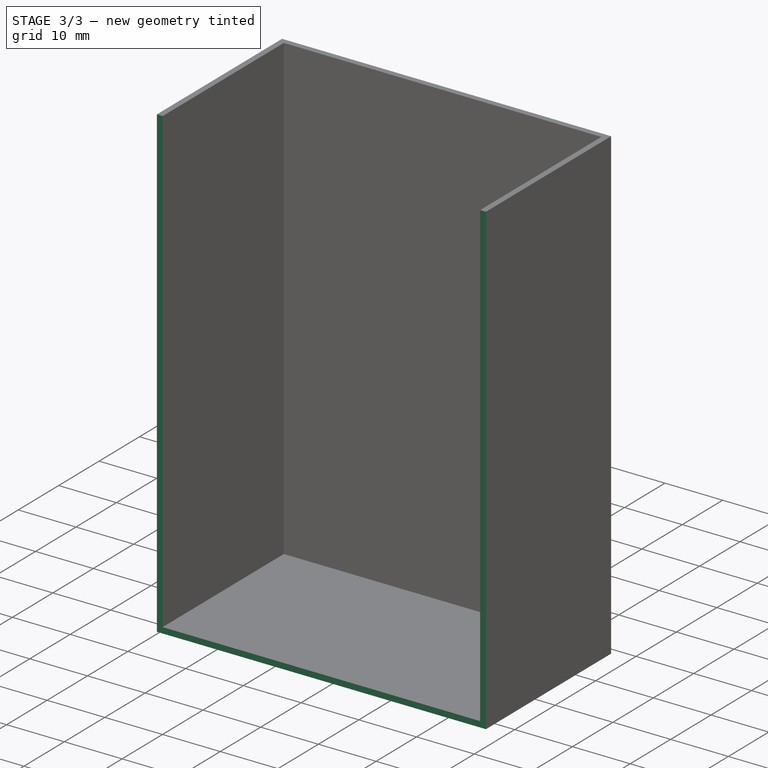
[diagram: stage 3 of 3 — iso view after this stage's code; geometry added in this stage tinted green]
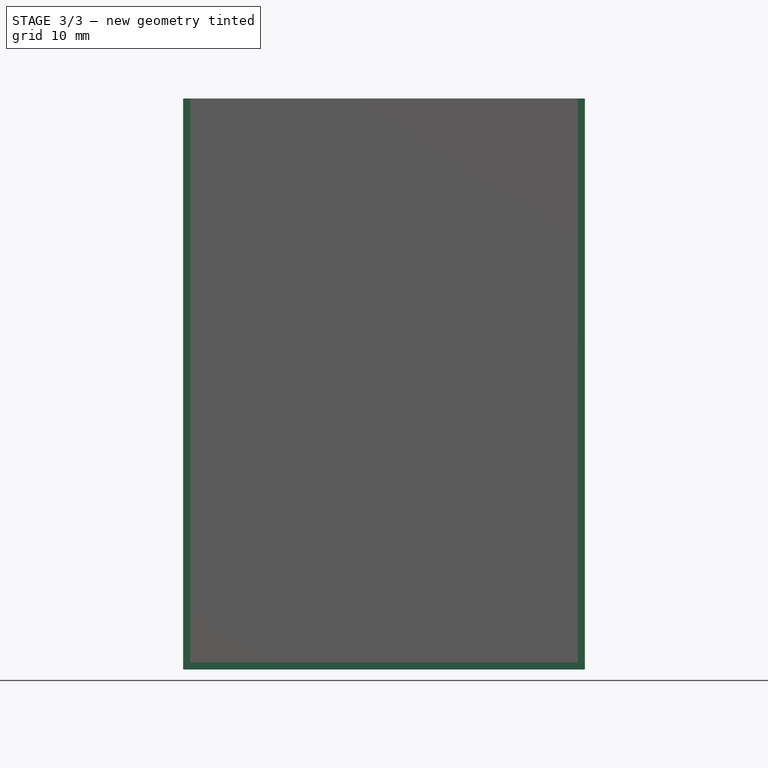
[diagram: stage 3 of 3 — front view after this stage's code; geometry added in this stage tinted green]
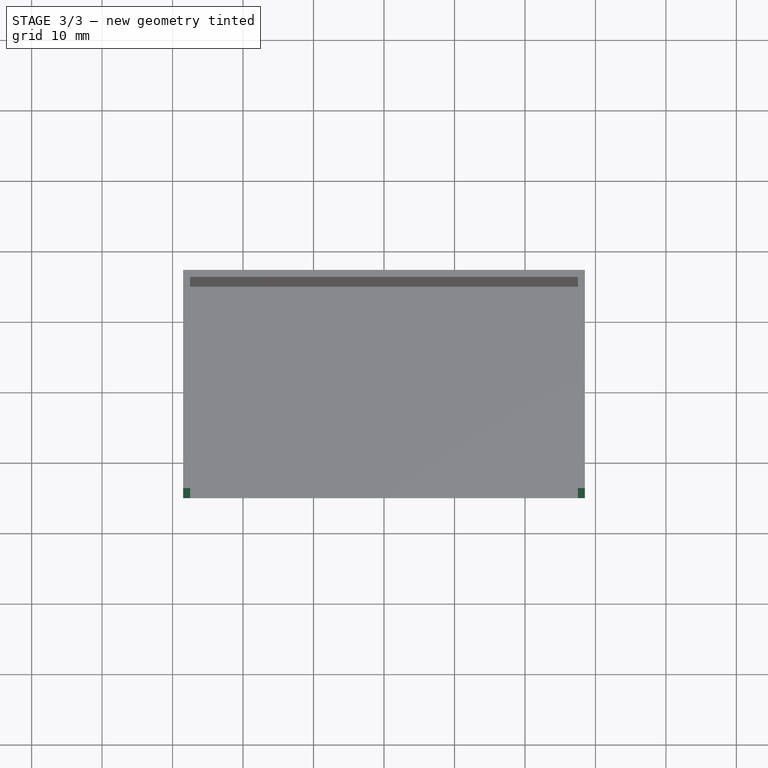
[diagram: stage 3 of 3 — top view after this stage's code; geometry added in this stage tinted green]
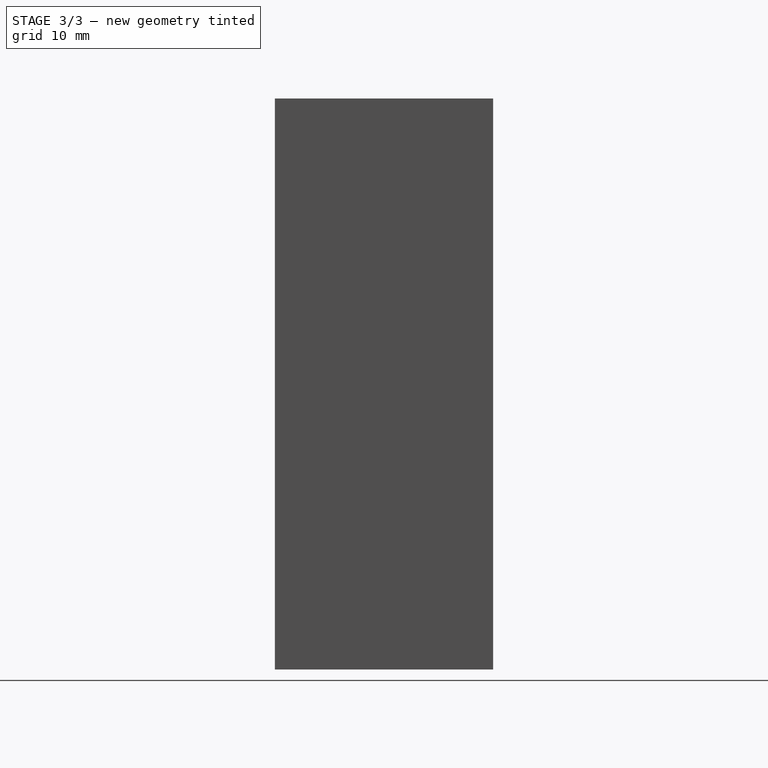
[diagram: stage 3 of 3 — right view after this stage's code; geometry added in this stage tinted green]
FEATURE [PartDesign::Fillet] Fillet
  Base = -> Pocket [Edge2,Edge10]
  BaseFeature = -> Pocket
  Radius = 1
  SupportTransform = false
  Suppressed = false
  UseAllEdges = false
FEATURE [Sketcher::SketchObject] Sketch005
  ArcFitTolerance = 1e-06
  AttachmentSupport = -> [Fillet]
  FullyConstrained = false
  MakeInternals = false
  MapMode = 5
  Placement = pos=(0,0,81) rot=(0,0,1;0rad)
  sketch-geometry (4):
    g0: LineSegment StartX=34.1705 StartY=-14.973 StartZ=0 EndX=-31.5733 EndY=-14.973 EndZ=0
    g1: LineSegment StartX=-31.5733 StartY=-14.973 StartZ=0 EndX=-31.5733 EndY=-20.9001 EndZ=0
    g2: LineSegment StartX=-31.5733 StartY=-20.9001 StartZ=0 EndX=34.1705 EndY=-20.9001 EndZ=0
    g3: LineSegment StartX=34.1705 StartY=-20.9001 StartZ=0 EndX=34.1705 EndY=-14.973 EndZ=0
  constraints (8):
    c: Horizontal(g0)
    c: Coincident(g0,g1)
    c: Vertical(g1)
    c: Coincident(g1,g2)
    c: Horizontal(g2)
    c: Coincident(g2,g3)
    c: Coincident(g3,g0)
    c: Vertical(g3)
FEATURE [PartDesign::Pocket] Pocket001
  BaseFeature = -> Fillet
  Direction = (0,0,-1)
  Length = 5
  Length2 = 5
  Profile = -> Sketch005
  ReferenceAxis = -> Sketch005 [N_Axis]
  Suppressed = false
  Type = 1
FEATURE [PartDesign::Body] Body
  AllowCompound = false
  Group = -> [Sketch,Pad,Thickness,Sketch001,Sketch002,Sketch004,Pocket,Fillet,Sketch005,Pocket001]
  Origin = -> Origin
  Tip = -> Pocket001
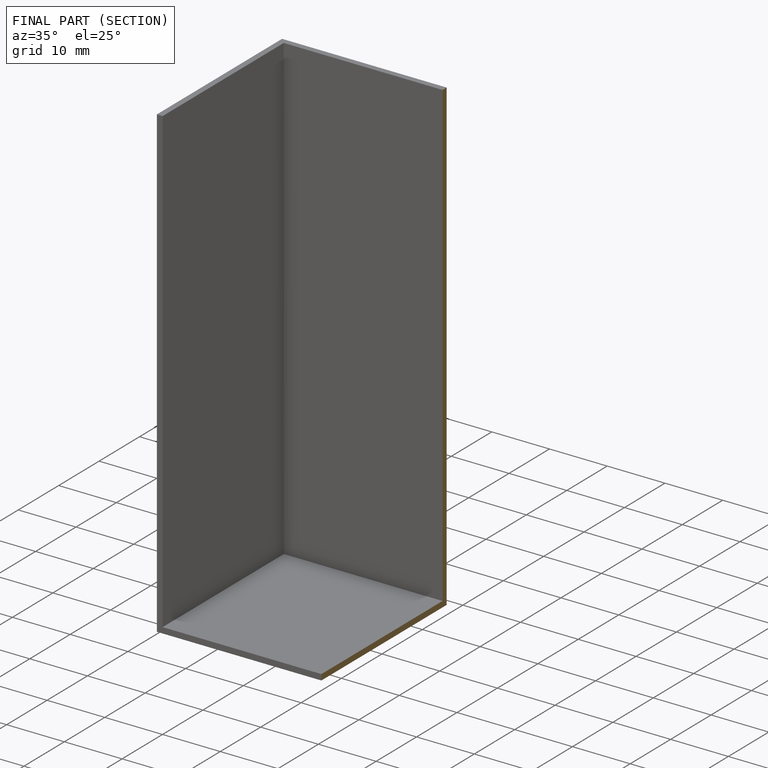
[diagram: finished part — half-section view (interior)]
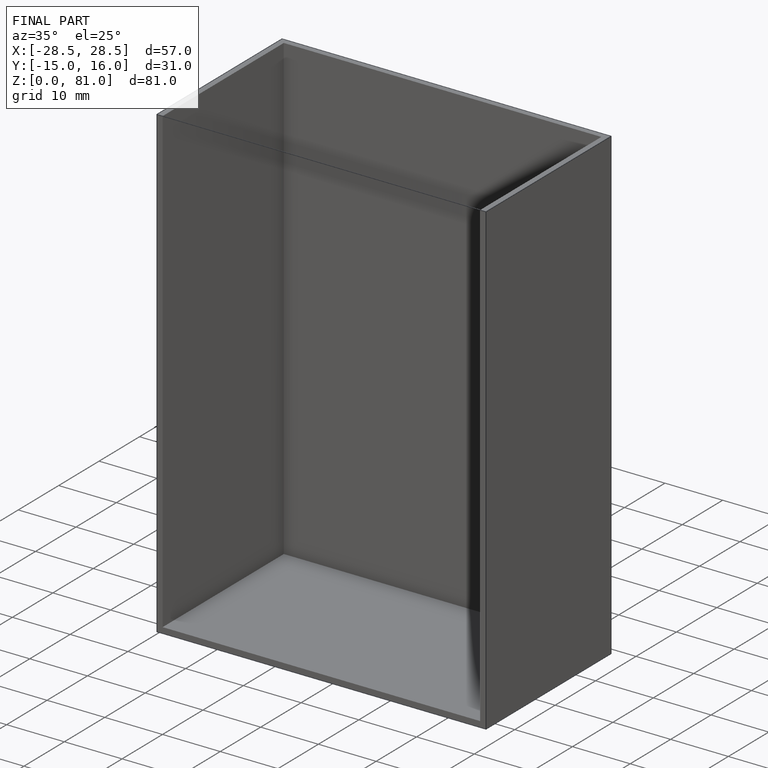
[diagram: finished part — iso view with bounding-box wireframe]
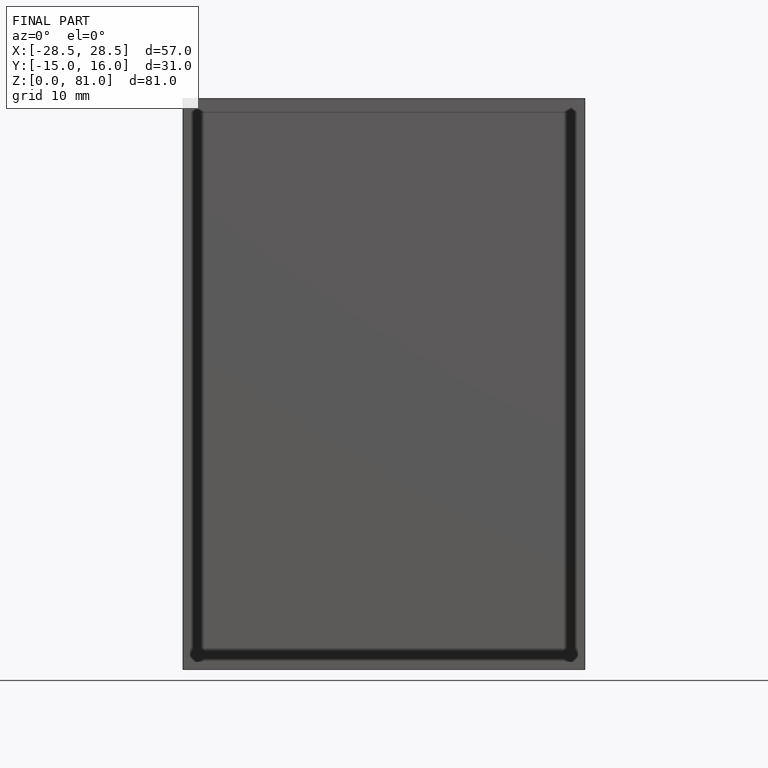
[diagram: finished part — front view with bounding-box wireframe]
